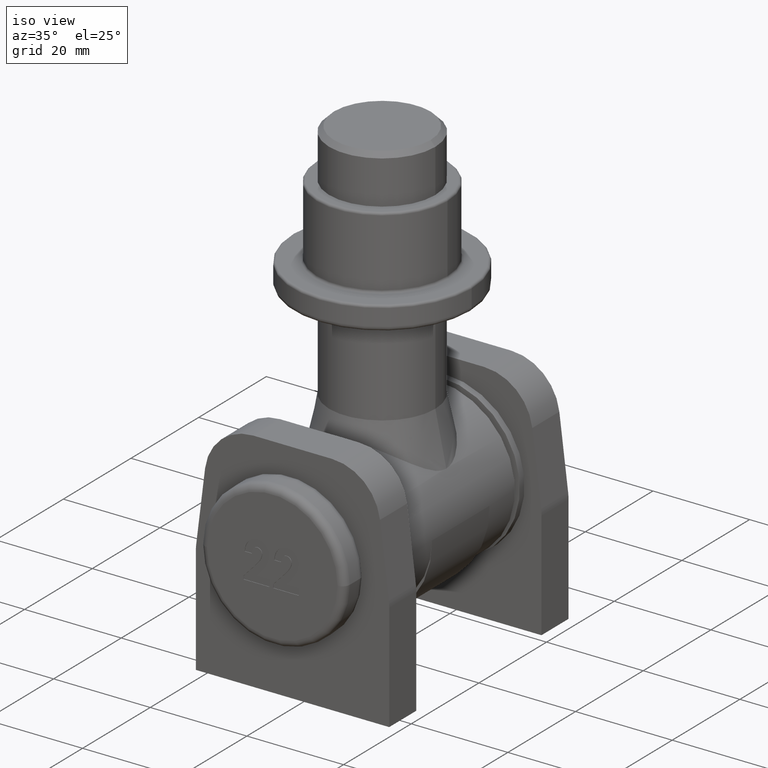
[diagram: clean part render]
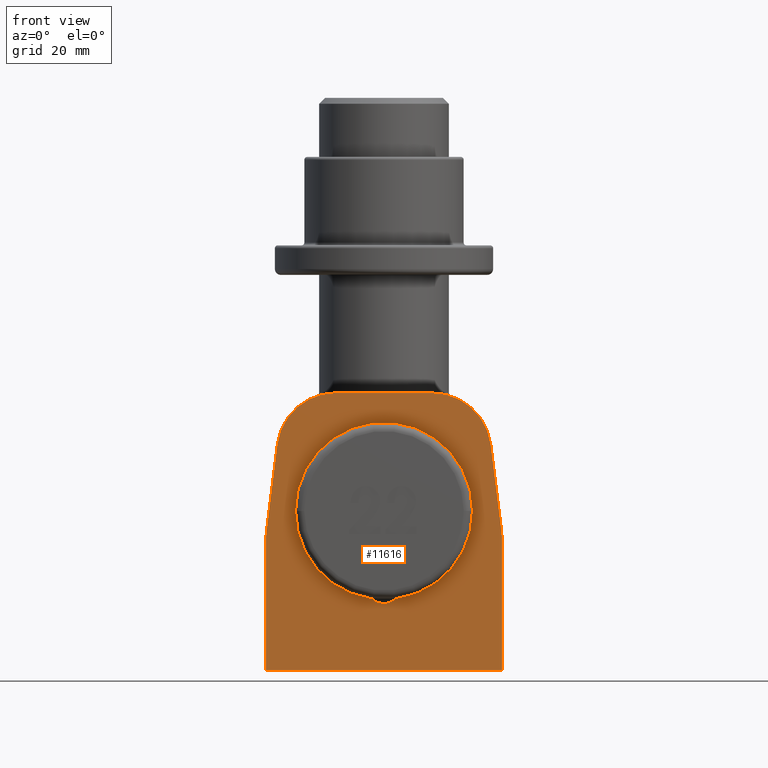
[diagram: tour spotlight — one face highlighted and labeled with its STEP entity id]
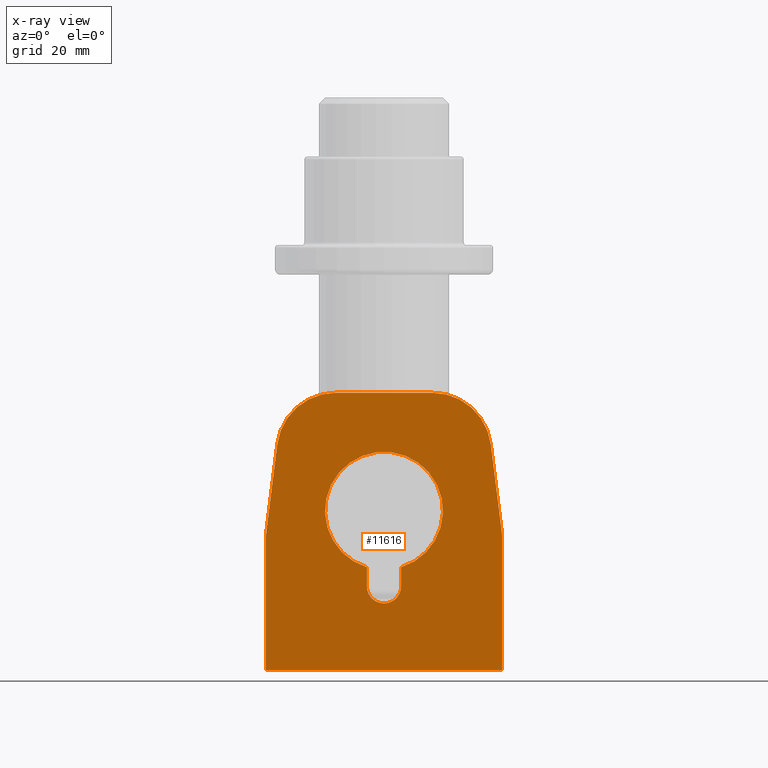
[diagram: x-ray of the same camera — body ghosted, this tour face saturated]
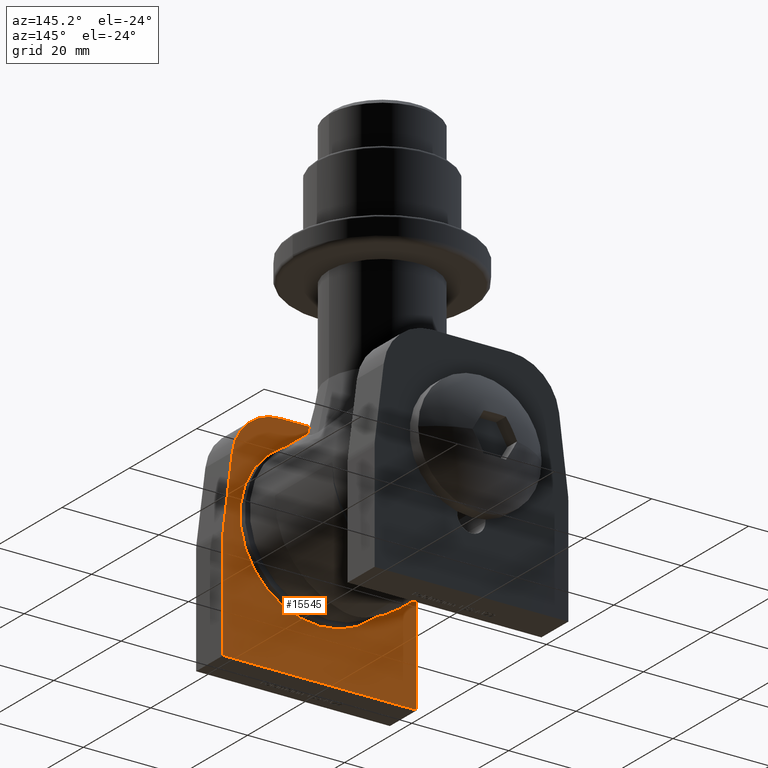
[diagram: tour spotlight — one face highlighted and labeled with its STEP entity id]
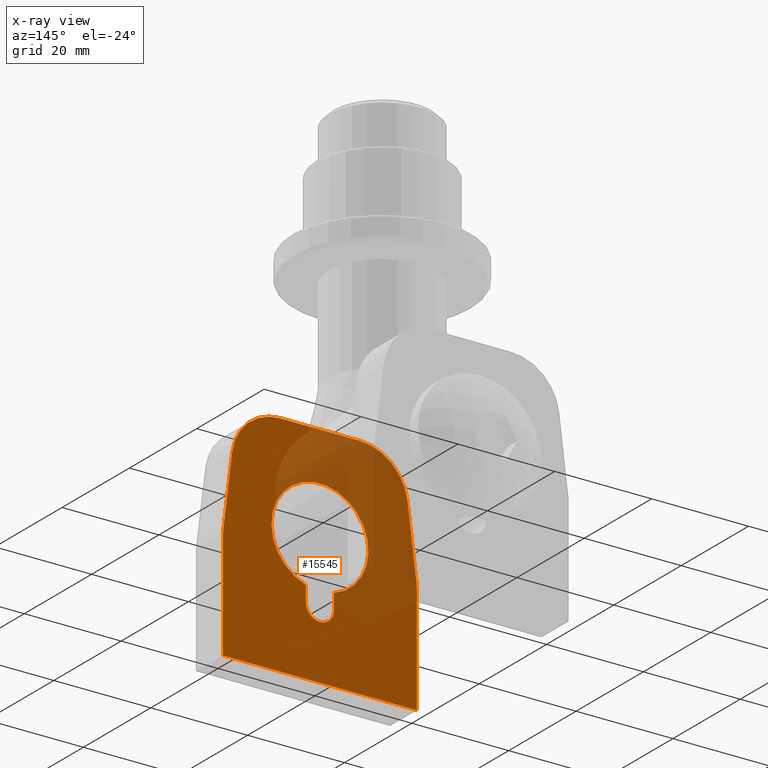
[diagram: x-ray of the same camera — body ghosted, this tour face saturated]
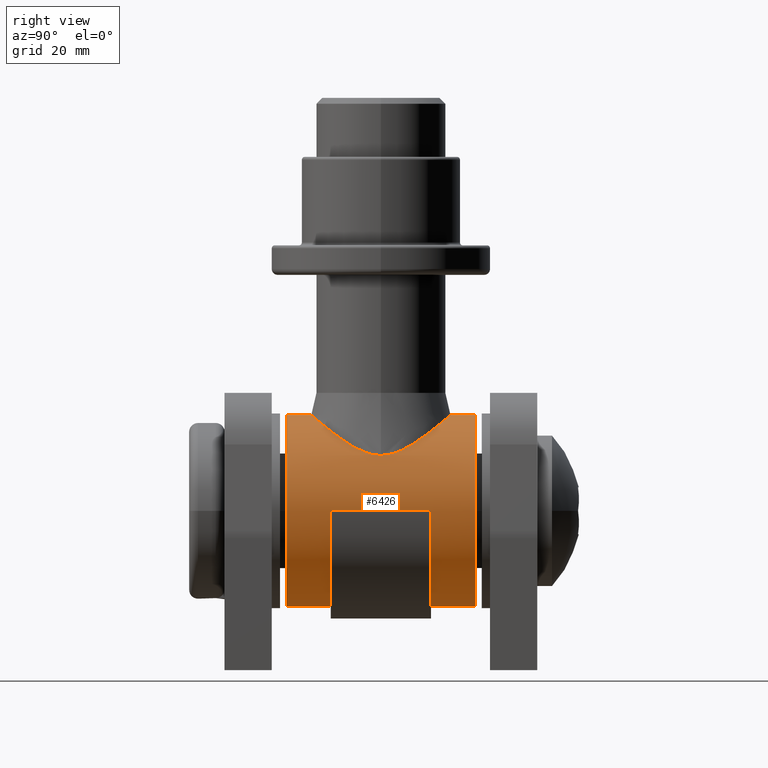
[diagram: tour spotlight — one face highlighted and labeled with its STEP entity id]
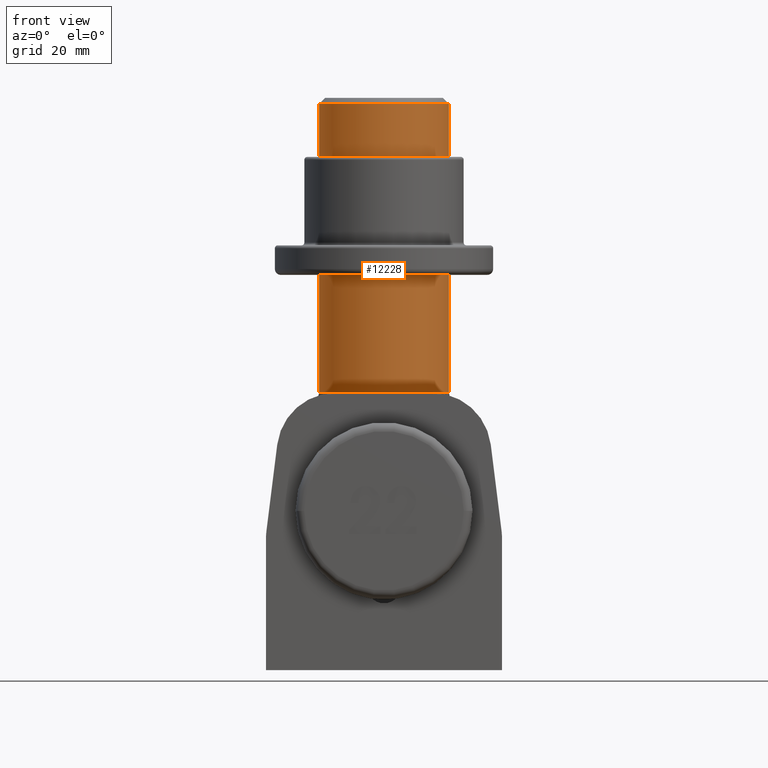
[diagram: tour spotlight — one face highlighted and labeled with its STEP entity id]
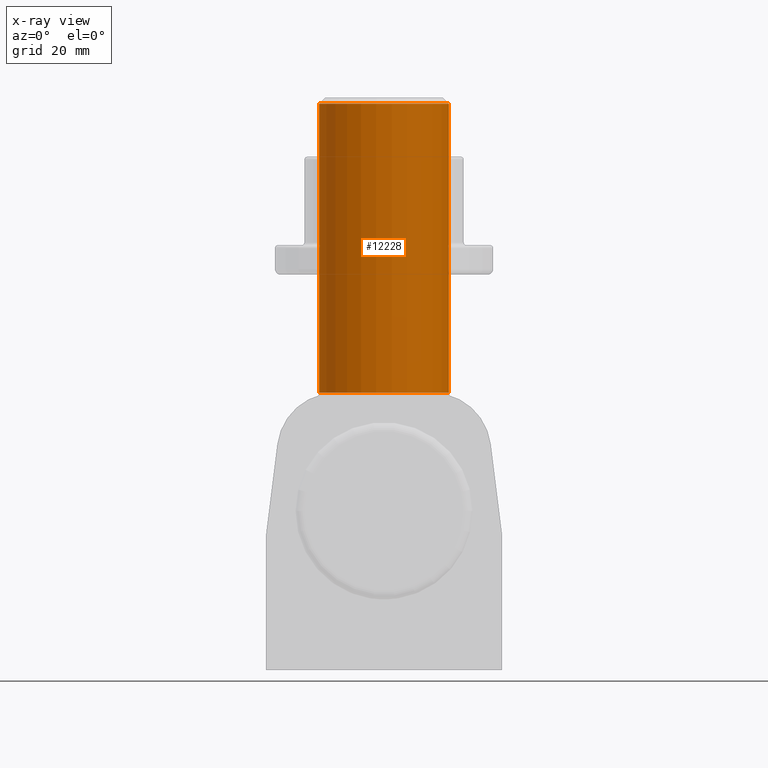
[diagram: x-ray of the same camera — body ghosted, this tour face saturated]
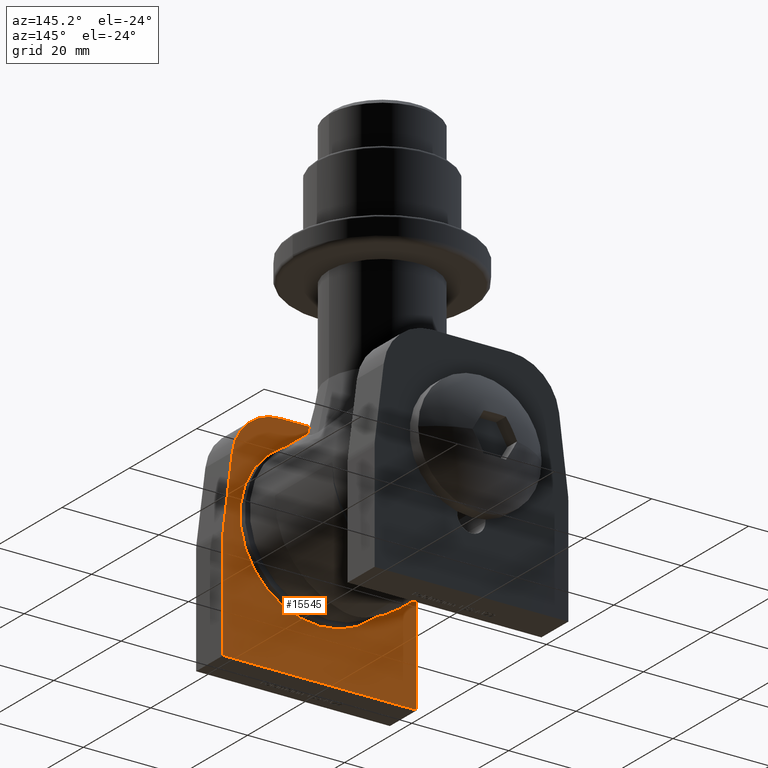
[diagram: tour spotlight — one face highlighted and labeled with its STEP entity id]
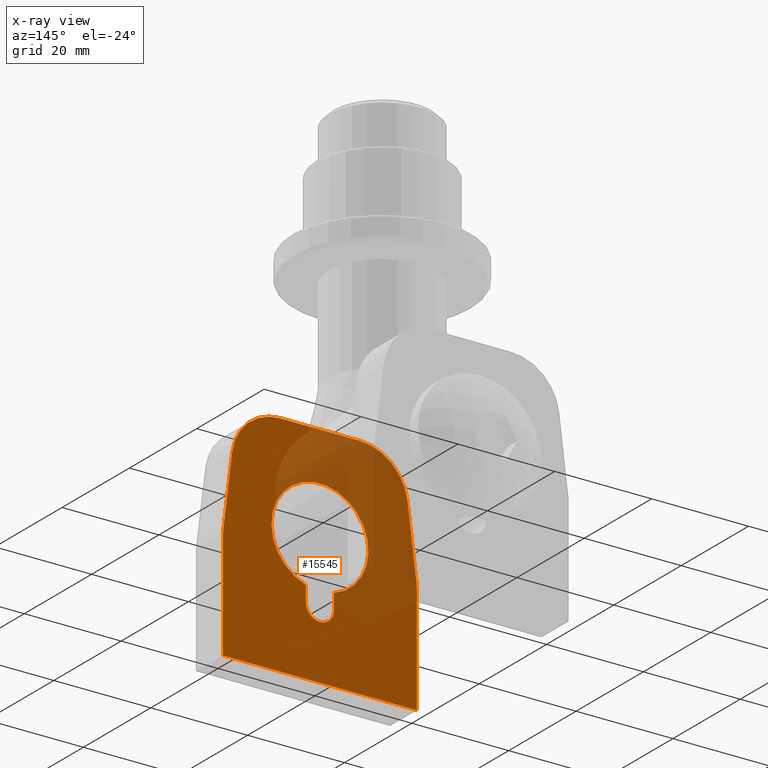
[diagram: x-ray of the same camera — body ghosted, this tour face saturated]
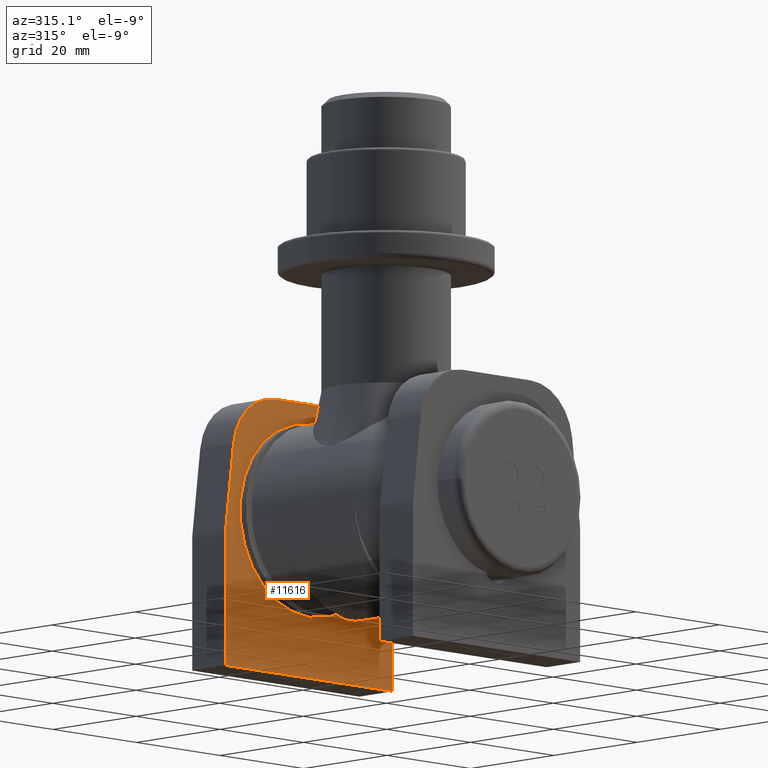
[diagram: tour spotlight — one face highlighted and labeled with its STEP entity id]
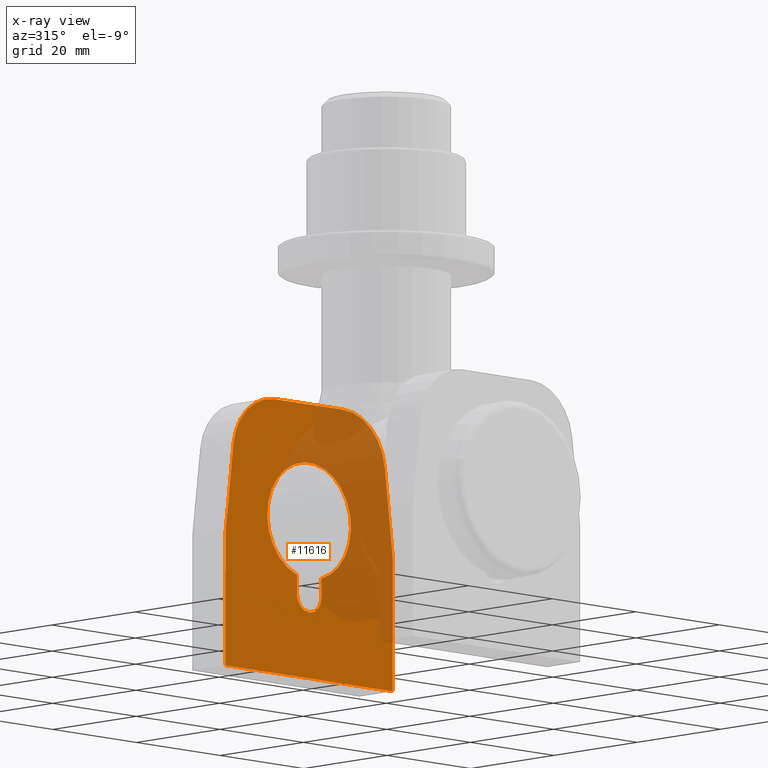
[diagram: x-ray of the same camera — body ghosted, this tour face saturated]
A machine part: a face-by-face anatomy tour. The part has 552 B-rep faces; the first image is the clean iso view, then the 6 largest visible faces are spotlighted one at a time (largest first), each with its STEP entity span.

Face 1 — front view, entity #11616. An x-ray twin of the same camera follows (body ghosted, this face saturated) — the face is partly hidden behind the body. In plain terms, the highlighted planar face has unit normal (0, -1, 0).
Definition (entity closure, byte-faithful):
#221 = VERTEX_POINT ( 'NONE', #14909 ) ;
#402 = EDGE_CURVE ( 'NONE', #5090, #6464, #7000, .T. ) ;
#623 = VERTEX_POINT ( 'NONE', #15334 ) ;
#719 = CARTESIAN_POINT ( 'NONE',  ( 17.00000000000000000, -4.000000000000000000, 23.50000000000000400 ) ) ;
#880 = DIRECTION ( 'NONE',  ( 0.0000000000000000000, 0.0000000000000000000, -1.000000000000000000 ) ) ;
#883 = VERTEX_POINT ( 'NONE', #6394 ) ;
#889 = DIRECTION ( 'NONE',  ( 0.0000000000000000000, 0.0000000000000000000, -1.000000000000000000 ) ) ;
#1038 = DIRECTION ( 'NONE',  ( 0.0000000000000000000, 0.0000000000000000000, -1.000000000000000000 ) ) ;
#1247 = DIRECTION ( 'NONE',  ( 0.0000000000000000000, 0.0000000000000000000, -1.000000000000000000 ) ) ;
#1395 = FACE_BOUND ( 'NONE', #1807, .T. ) ;
#1406 = CIRCLE ( 'NONE', #14851, 10.00000000000000000 ) ;
#1466 = ORIENTED_EDGE ( 'NONE', *, *, #8343, .T. ) ;
#1707 = CIRCLE ( 'NONE', #6314, 10.00000000000000000 ) ;
#1715 = AXIS2_PLACEMENT_3D ( 'NONE', #3473, #13056, #880 ) ;
#1733 = VECTOR ( 'NONE', #9433, 1000.000000000000200 ) ;
#1807 = EDGE_LOOP ( 'NONE', ( #14402, #11798, #6026, #5841, #1466 ) ) ;
#1822 = VECTOR ( 'NONE', #2552, 1000.000000000000000 ) ;
#1892 = DIRECTION ( 'NONE',  ( 0.0000000000000000000, 0.0000000000000000000, -1.000000000000000000 ) ) ;
#1992 = DIRECTION ( 'NONE',  ( 0.1240347345892083800, -0.0000000000000000000, -0.9922778767136676300 ) ) ;
#2140 = LINE ( 'NONE', #8158, #1733 ) ;
#2276 = CARTESIAN_POINT ( 'NONE',  ( -8.172177814626813600, -4.000000000000000000, 23.50000000000000400 ) ) ;
#2552 = DIRECTION ( 'NONE',  ( -1.342775999361927100E-016, -0.0000000000000000000, 1.000000000000000000 ) ) ;
#2635 = DIRECTION ( 'NONE',  ( -1.000000000000000000, -0.0000000000000000000, -0.0000000000000000000 ) ) ;
#2669 = VERTEX_POINT ( 'NONE', #15688 ) ;
#3087 = CARTESIAN_POINT ( 'NONE',  ( 19.92277876713667700, -4.000000000000000000, 0.1177698629065827700 ) ) ;
#3162 = CARTESIAN_POINT ( 'NONE',  ( 2.899999999999999900, -4.000000000000000000, -9.300000000000000700 ) ) ;
#3295 = ORIENTED_EDGE ( 'NONE', *, *, #7662, .T. ) ;
#3459 = EDGE_CURVE ( 'NONE', #4890, #9794, #4199, .T. ) ;
#3473 = CARTESIAN_POINT ( 'NONE',  ( -8.172177814626813600, -4.000000000000000000, 13.50000000000000400 ) ) ;
#3929 = EDGE_CURVE ( 'NONE', #5090, #221, #12735, .T. ) ;
#4199 = CIRCLE ( 'NONE', #11379, 2.899999999999999900 ) ;
#4379 = DIRECTION ( 'NONE',  ( 1.000000000000000000, -0.0000000000000000000, -0.0000000000000000000 ) ) ;
#4400 = DIRECTION ( 'NONE',  ( -1.342775999361927100E-016, -0.0000000000000000000, -1.000000000000000000 ) ) ;
#4428 = CARTESIAN_POINT ( 'NONE',  ( -2.899999999999999900, -4.000000000000000000, -9.300000000000000700 ) ) ;
#4485 = VECTOR ( 'NONE', #5826, 1000.000000000000000 ) ;
#4508 = CIRCLE ( 'NONE', #7967, 10.00000000000000000 ) ;
#4890 = VERTEX_POINT ( 'NONE', #6878 ) ;
#4963 = EDGE_CURVE ( 'NONE', #7890, #883, #8369, .T. ) ;
#5090 = VERTEX_POINT ( 'NONE', #2276 ) ;
#5112 = CARTESIAN_POINT ( 'NONE',  ( 0.0000000000000000000, -4.000000000000000000, -9.300000000000000700 ) ) ;
#5308 = DIRECTION ( 'NONE',  ( -0.0000000000000000000, -0.0000000000000000000, 1.000000000000000000 ) ) ;
#5365 = CARTESIAN_POINT ( 'NONE',  ( 18.09495658176349100, -4.000000000000000000, 14.74034734589208600 ) ) ;
#5683 = EDGE_CURVE ( 'NONE', #883, #9407, #9493, .T. ) ;
#5826 = DIRECTION ( 'NONE',  ( -0.0000000000000000000, -0.0000000000000000000, -1.000000000000000000 ) ) ;
#5841 = ORIENTED_EDGE ( 'NONE', *, *, #3459, .T. ) ;
#5853 = LINE ( 'NONE', #11670, #15114 ) ;
#6026 = ORIENTED_EDGE ( 'NONE', *, *, #6318, .T. ) ;
#6042 = DIRECTION ( 'NONE',  ( 0.0000000000000000000, 0.0000000000000000000, -1.000000000000000000 ) ) ;
#6314 = AXIS2_PLACEMENT_3D ( 'NONE', #8175, #9242, #1892 ) ;
#6318 = EDGE_CURVE ( 'NONE', #9407, #4890, #8298, .T. ) ;
#6394 = CARTESIAN_POINT ( 'NONE',  ( -2.900000000000000400, -4.000000000000000000, -6.070266453970862000 ) ) ;
#6411 = EDGE_CURVE ( 'NONE', #2669, #13812, #10600, .T. ) ;
#6464 = VERTEX_POINT ( 'NONE', #10856 ) ;
#6533 = CIRCLE ( 'NONE', #11003, 2.899999999999999900 ) ;
#6878 = CARTESIAN_POINT ( 'NONE',  ( 2.899999999999999900, -4.000000000000000000, -9.300000000000000700 ) ) ;
#7000 = LINE ( 'NONE', #719, #11171 ) ;
#7053 = EDGE_CURVE ( 'NONE', #13812, #623, #14720, .T. ) ;
#7142 = DIRECTION ( 'NONE',  ( 0.0000000000000000000, 1.000000000000000000, -0.0000000000000000000 ) ) ;
#7169 = EDGE_CURVE ( 'NONE', #12570, #221, #2140, .T. ) ;
#7267 = PLANE ( 'NONE',  #8864 ) ;
#7568 = VECTOR ( 'NONE', #5308, 1000.000000000000000 ) ;
#7662 = EDGE_CURVE ( 'NONE', #14994, #6464, #1707, .T. ) ;
#7890 = VERTEX_POINT ( 'NONE', #4428 ) ;
#7963 = CARTESIAN_POINT ( 'NONE',  ( 2.900000000000000400, -4.000000000000000000, -6.070266453970862000 ) ) ;
#7967 = AXIS2_PLACEMENT_3D ( 'NONE', #12006, #8463, #889 ) ;
#8158 = CARTESIAN_POINT ( 'NONE',  ( -17.00000000000000000, -4.000000000000000000, 23.50000000000000400 ) ) ;
#8175 = CARTESIAN_POINT ( 'NONE',  ( 8.172177814626813600, -4.000000000000000000, 13.50000000000000200 ) ) ;
#8298 = LINE ( 'NONE', #3162, #13787 ) ;
#8343 = EDGE_CURVE ( 'NONE', #9794, #7890, #6533, .T. ) ;
#8369 = LINE ( 'NONE', #14903, #1822 ) ;
#8382 = CARTESIAN_POINT ( 'NONE',  ( -19.92277876713667700, -4.000000000000000000, 0.1177698629065866700 ) ) ;
#8463 = DIRECTION ( 'NONE',  ( 0.0000000000000000000, -1.000000000000000000, 0.0000000000000000000 ) ) ;
#8676 = ORIENTED_EDGE ( 'NONE', *, *, #7169, .F. ) ;
#8864 = AXIS2_PLACEMENT_3D ( 'NONE', #11866, #13081, #9549 ) ;
#9090 = ORIENTED_EDGE ( 'NONE', *, *, #12880, .F. ) ;
#9197 = EDGE_LOOP ( 'NONE', ( #8676, #11176, #9090, #10519, #12355, #13677, #14399, #3295, #10714, #9591 ) ) ;
#9242 = DIRECTION ( 'NONE',  ( 0.0000000000000000000, -1.000000000000000000, 0.0000000000000000000 ) ) ;
#9407 = VERTEX_POINT ( 'NONE', #7963 ) ;
#9433 = DIRECTION ( 'NONE',  ( 0.1240347345892083800, -0.0000000000000000000, 0.9922778767136676300 ) ) ;
#9493 = CIRCLE ( 'NONE', #11493, 9.999999999999998200 ) ;
#9549 = DIRECTION ( 'NONE',  ( 0.0000000000000000000, -0.0000000000000000000, -1.000000000000000000 ) ) ;
#9591 = ORIENTED_EDGE ( 'NONE', *, *, #3929, .T. ) ;
#9794 = VERTEX_POINT ( 'NONE', #15757 ) ;
#9809 = DIRECTION ( 'NONE',  ( 0.0000000000000000000, 1.000000000000000000, -0.0000000000000000000 ) ) ;
#9980 = CARTESIAN_POINT ( 'NONE',  ( -20.00000000000000000, -4.000000000000000000, -23.50000000000000400 ) ) ;
#10519 = ORIENTED_EDGE ( 'NONE', *, *, #7053, .F. ) ;
#10600 = LINE ( 'NONE', #15574, #4485 ) ;
#10714 = ORIENTED_EDGE ( 'NONE', *, *, #402, .F. ) ;
#10856 = CARTESIAN_POINT ( 'NONE',  ( 8.172177814626813600, -4.000000000000000000, 23.50000000000000400 ) ) ;
#10929 = VERTEX_POINT ( 'NONE', #11026 ) ;
#11003 = AXIS2_PLACEMENT_3D ( 'NONE', #5112, #7142, #1038 ) ;
#11024 = DIRECTION ( 'NONE',  ( 0.0000000000000000000, 0.0000000000000000000, 1.000000000000000000 ) ) ;
#11026 = CARTESIAN_POINT ( 'NONE',  ( -20.00000000000000000, -4.000000000000000000, -1.122577482985502000 ) ) ;
#11171 = VECTOR ( 'NONE', #4379, 1000.000000000000000 ) ;
#11176 = ORIENTED_EDGE ( 'NONE', *, *, #12154, .T. ) ;
#11320 = CARTESIAN_POINT ( 'NONE',  ( -20.00000000000000000, -4.000000000000000000, -0.5000000000000038900 ) ) ;
#11379 = AXIS2_PLACEMENT_3D ( 'NONE', #13327, #9809, #6042 ) ;
#11493 = AXIS2_PLACEMENT_3D ( 'NONE', #14707, #14543, #11024 ) ;
#11616 = ADVANCED_FACE ( 'NONE', ( #13428, #1395 ), #7267, .T. ) ;
#11670 = CARTESIAN_POINT ( 'NONE',  ( 20.00000000000000000, -4.000000000000000000, -0.5000000000000038900 ) ) ;
#11798 = ORIENTED_EDGE ( 'NONE', *, *, #5683, .T. ) ;
#11866 = CARTESIAN_POINT ( 'NONE',  ( 0.0000000000000000000, -4.000000000000000000, 0.0000000000000000000 ) ) ;
#12006 = CARTESIAN_POINT ( 'NONE',  ( 10.00000000000000000, -4.000000000000000000, -1.122577482985502000 ) ) ;
#12154 = EDGE_CURVE ( 'NONE', #12570, #10929, #1406, .T. ) ;
#12243 = DIRECTION ( 'NONE',  ( 0.0000000000000000000, -1.000000000000000000, 0.0000000000000000000 ) ) ;
#12341 = VERTEX_POINT ( 'NONE', #3087 ) ;
#12355 = ORIENTED_EDGE ( 'NONE', *, *, #6411, .F. ) ;
#12570 = VERTEX_POINT ( 'NONE', #8382 ) ;
#12619 = VECTOR ( 'NONE', #2635, 1000.000000000000000 ) ;
#12735 = CIRCLE ( 'NONE', #1715, 10.00000000000000000 ) ;
#12880 = EDGE_CURVE ( 'NONE', #623, #10929, #13605, .T. ) ;
#13036 = EDGE_CURVE ( 'NONE', #2669, #12341, #4508, .T. ) ;
#13056 = DIRECTION ( 'NONE',  ( 0.0000000000000000000, -1.000000000000000000, 0.0000000000000000000 ) ) ;
#13081 = DIRECTION ( 'NONE',  ( 0.0000000000000000000, -1.000000000000000000, 0.0000000000000000000 ) ) ;
#13327 = CARTESIAN_POINT ( 'NONE',  ( 0.0000000000000000000, -4.000000000000000000, -9.300000000000000700 ) ) ;
#13428 = FACE_OUTER_BOUND ( 'NONE', #9197, .T. ) ;
#13605 = LINE ( 'NONE', #11320, #7568 ) ;
#13677 = ORIENTED_EDGE ( 'NONE', *, *, #13036, .T. ) ;
#13787 = VECTOR ( 'NONE', #4400, 1000.000000000000000 ) ;
#13812 = VERTEX_POINT ( 'NONE', #13931 ) ;
#13831 = EDGE_CURVE ( 'NONE', #14994, #12341, #5853, .T. ) ;
#13931 = CARTESIAN_POINT ( 'NONE',  ( 20.00000000000000000, -4.000000000000000000, -23.50000000000000400 ) ) ;
#14399 = ORIENTED_EDGE ( 'NONE', *, *, #13831, .F. ) ;
#14402 = ORIENTED_EDGE ( 'NONE', *, *, #4963, .T. ) ;
#14543 = DIRECTION ( 'NONE',  ( 0.0000000000000000000, 1.000000000000000000, 0.0000000000000000000 ) ) ;
#14696 = CARTESIAN_POINT ( 'NONE',  ( -10.00000000000000000, -4.000000000000000000, -1.122577482985502000 ) ) ;
#14707 = CARTESIAN_POINT ( 'NONE',  ( 1.925929944387235900E-031, -4.000000000000000000, 3.499999999999998200 ) ) ;
#14720 = LINE ( 'NONE', #9980, #12619 ) ;
#14851 = AXIS2_PLACEMENT_3D ( 'NONE', #14696, #12243, #1247 ) ;
#14903 = CARTESIAN_POINT ( 'NONE',  ( -2.900000000000000400, -4.000000000000000000, -6.070266453970862000 ) ) ;
#14909 = CARTESIAN_POINT ( 'NONE',  ( -18.09495658176349100, -4.000000000000000000, 14.74034734589208800 ) ) ;
#14994 = VERTEX_POINT ( 'NONE', #5365 ) ;
#15114 = VECTOR ( 'NONE', #1992, 1000.000000000000200 ) ;
#15334 = CARTESIAN_POINT ( 'NONE',  ( -20.00000000000000000, -4.000000000000000000, -23.50000000000000400 ) ) ;
#15574 = CARTESIAN_POINT ( 'NONE',  ( 20.00000000000000000, -4.000000000000000000, -23.50000000000000400 ) ) ;
#15688 = CARTESIAN_POINT ( 'NONE',  ( 20.00000000000000000, -4.000000000000000000, -1.122577482985502000 ) ) ;
#15757 = CARTESIAN_POINT ( 'NONE',  ( 0.0000000000000000000, -4.000000000000000000, -12.20000000000000100 ) ) ;

Face 2 — auxiliary view, entity #15545. An x-ray twin of the same camera follows (body ghosted, this face saturated) — the face is partly hidden behind the body. In plain terms, the highlighted planar face has unit normal (0, -1, 0).
Definition (entity closure, byte-faithful):
#12 = AXIS2_PLACEMENT_3D ( 'NONE', #2729, #5171, #7776 ) ;
#106 = VERTEX_POINT ( 'NONE', #11048 ) ;
#400 = DIRECTION ( 'NONE',  ( 1.000000000000000000, -0.0000000000000000000, -0.0000000000000000000 ) ) ;
#588 = CARTESIAN_POINT ( 'NONE',  ( -10.00000000000000000, 4.000000000000000000, -1.122577482985502000 ) ) ;
#656 = DIRECTION ( 'NONE',  ( 0.1240347345892083800, -0.0000000000000000000, -0.9922778767136676300 ) ) ;
#741 = EDGE_CURVE ( 'NONE', #6906, #14143, #800, .T. ) ;
#800 = CIRCLE ( 'NONE', #10448, 2.899999999999999900 ) ;
#1003 = DIRECTION ( 'NONE',  ( -7.979727989493312600E-015, 0.0000000000000000000, -1.000000000000000000 ) ) ;
#1134 = AXIS2_PLACEMENT_3D ( 'NONE', #2771, #8808, #1512 ) ;
#1426 = CARTESIAN_POINT ( 'NONE',  ( 8.172177814626813600, 4.000000000000000000, 23.50000000000000400 ) ) ;
#1512 = DIRECTION ( 'NONE',  ( 0.0000000000000000000, 0.0000000000000000000, 1.000000000000000000 ) ) ;
#1554 = VERTEX_POINT ( 'NONE', #8562 ) ;
#1586 = AXIS2_PLACEMENT_3D ( 'NONE', #11182, #2775, #6460 ) ;
#1617 = DIRECTION ( 'NONE',  ( 0.0000000000000000000, 0.0000000000000000000, -1.000000000000000000 ) ) ;
#1663 = DIRECTION ( 'NONE',  ( 0.0000000000000000000, 0.0000000000000000000, -1.000000000000000000 ) ) ;
#1806 = DIRECTION ( 'NONE',  ( 0.0000000000000000000, -1.000000000000000000, 0.0000000000000000000 ) ) ;
#2119 = CARTESIAN_POINT ( 'NONE',  ( 2.900000000000000400, 4.000000000000000000, -6.070266453970862000 ) ) ;
#2139 = CARTESIAN_POINT ( 'NONE',  ( 10.00000000000000000, 4.000000000000000000, -1.122577482985502000 ) ) ;
#2213 = ORIENTED_EDGE ( 'NONE', *, *, #13918, .T. ) ;
#2320 = CARTESIAN_POINT ( 'NONE',  ( -2.900000000000000400, 4.000000000000000000, -6.070266453970862000 ) ) ;
#2639 = LINE ( 'NONE', #2815, #3025 ) ;
#2729 = CARTESIAN_POINT ( 'NONE',  ( -8.172177814626813600, 4.000000000000000000, 13.50000000000000400 ) ) ;
#2771 = CARTESIAN_POINT ( 'NONE',  ( 1.925929944387235900E-031, 4.000000000000000000, 3.499999999999998200 ) ) ;
#2775 = DIRECTION ( 'NONE',  ( 0.0000000000000000000, 1.000000000000000000, -0.0000000000000000000 ) ) ;
#2815 = CARTESIAN_POINT ( 'NONE',  ( 20.00000000000000000, 4.000000000000000000, -23.50000000000000400 ) ) ;
#2821 = VERTEX_POINT ( 'NONE', #9930 ) ;
#2879 = ORIENTED_EDGE ( 'NONE', *, *, #8486, .F. ) ;
#3025 = VECTOR ( 'NONE', #4006, 1000.000000000000000 ) ;
#3093 = ORIENTED_EDGE ( 'NONE', *, *, #10498, .T. ) ;
#3598 = VERTEX_POINT ( 'NONE', #9705 ) ;
#4006 = DIRECTION ( 'NONE',  ( -0.0000000000000000000, -0.0000000000000000000, -1.000000000000000000 ) ) ;
#4013 = VERTEX_POINT ( 'NONE', #5152 ) ;
#4091 = ORIENTED_EDGE ( 'NONE', *, *, #11730, .T. ) ;
#4651 = CARTESIAN_POINT ( 'NONE',  ( -20.00000000000000000, 4.000000000000000000, -23.50000000000000400 ) ) ;
#4653 = VECTOR ( 'NONE', #400, 1000.000000000000000 ) ;
#4735 = VECTOR ( 'NONE', #11559, 1000.000000000000000 ) ;
#4801 = EDGE_CURVE ( 'NONE', #15106, #15306, #7802, .T. ) ;
#5152 = CARTESIAN_POINT ( 'NONE',  ( -8.172177814626813600, 4.000000000000000000, 23.50000000000000400 ) ) ;
#5171 = DIRECTION ( 'NONE',  ( -0.0000000000000000000, 1.000000000000000000, -0.0000000000000000000 ) ) ;
#5268 = ORIENTED_EDGE ( 'NONE', *, *, #6084, .T. ) ;
#5601 = CARTESIAN_POINT ( 'NONE',  ( -2.900000000000000400, 4.000000000000000000, -6.070266453970862000 ) ) ;
#5722 = CARTESIAN_POINT ( 'NONE',  ( 0.0000000000000000000, 4.000000000000000000, 0.0000000000000000000 ) ) ;
#5840 = CARTESIAN_POINT ( 'NONE',  ( 2.899999999999999900, 4.000000000000000000, -9.300000000000000700 ) ) ;
#5868 = VERTEX_POINT ( 'NONE', #2119 ) ;
#6006 = ORIENTED_EDGE ( 'NONE', *, *, #9447, .T. ) ;
#6059 = EDGE_CURVE ( 'NONE', #106, #13065, #12226, .T. ) ;
#6084 = EDGE_CURVE ( 'NONE', #8889, #3598, #7916, .T. ) ;
#6098 = VECTOR ( 'NONE', #15039, 1000.000000000000000 ) ;
#6460 = DIRECTION ( 'NONE',  ( 0.0000000000000000000, 0.0000000000000000000, -1.000000000000000000 ) ) ;
#6710 = CARTESIAN_POINT ( 'NONE',  ( 20.00000000000000000, 4.000000000000000000, -0.5000000000000038900 ) ) ;
#6906 = VERTEX_POINT ( 'NONE', #10382 ) ;
#7003 = DIRECTION ( 'NONE',  ( 0.0000000000000000000, -0.0000000000000000000, -1.000000000000000000 ) ) ;
#7167 = CARTESIAN_POINT ( 'NONE',  ( -17.00000000000000000, 4.000000000000000000, 23.50000000000000400 ) ) ;
#7347 = EDGE_CURVE ( 'NONE', #5868, #6906, #14334, .T. ) ;
#7390 = ORIENTED_EDGE ( 'NONE', *, *, #6059, .T. ) ;
#7659 = ORIENTED_EDGE ( 'NONE', *, *, #8057, .T. ) ;
#7776 = DIRECTION ( 'NONE',  ( 0.0000000000000000000, 0.0000000000000000000, -1.000000000000000000 ) ) ;
#7802 = LINE ( 'NONE', #5601, #4735 ) ;
#7813 = ORIENTED_EDGE ( 'NONE', *, *, #9300, .T. ) ;
#7916 = CIRCLE ( 'NONE', #14809, 10.00000000000000000 ) ;
#8007 = CARTESIAN_POINT ( 'NONE',  ( 8.172177814626813600, 4.000000000000000000, 13.50000000000000200 ) ) ;
#8057 = EDGE_CURVE ( 'NONE', #8621, #4013, #15445, .T. ) ;
#8182 = AXIS2_PLACEMENT_3D ( 'NONE', #5722, #1806, #7003 ) ;
#8218 = DIRECTION ( 'NONE',  ( 0.1240347345892083800, -0.0000000000000000000, 0.9922778767136676300 ) ) ;
#8317 = CARTESIAN_POINT ( 'NONE',  ( 19.92277876713667700, 4.000000000000000000, 0.1177698629065827700 ) ) ;
#8320 = DIRECTION ( 'NONE',  ( -1.342775999361927100E-016, -0.0000000000000000000, -1.000000000000000000 ) ) ;
#8486 = EDGE_CURVE ( 'NONE', #15306, #5868, #9576, .T. ) ;
#8522 = AXIS2_PLACEMENT_3D ( 'NONE', #588, #9010, #1663 ) ;
#8562 = CARTESIAN_POINT ( 'NONE',  ( 20.00000000000000000, 4.000000000000000000, -1.122577482985502000 ) ) ;
#8621 = VERTEX_POINT ( 'NONE', #11684 ) ;
#8636 = FACE_BOUND ( 'NONE', #9732, .T. ) ;
#8808 = DIRECTION ( 'NONE',  ( 0.0000000000000000000, 1.000000000000000000, 0.0000000000000000000 ) ) ;
#8889 = VERTEX_POINT ( 'NONE', #1426 ) ;
#8956 = ORIENTED_EDGE ( 'NONE', *, *, #12458, .T. ) ;
#8959 = DIRECTION ( 'NONE',  ( -0.0000000000000000000, 1.000000000000000000, -0.0000000000000000000 ) ) ;
#9010 = DIRECTION ( 'NONE',  ( -0.0000000000000000000, 1.000000000000000000, -0.0000000000000000000 ) ) ;
#9109 = LINE ( 'NONE', #11260, #6098 ) ;
#9300 = EDGE_CURVE ( 'NONE', #1554, #2821, #2639, .T. ) ;
#9401 = ORIENTED_EDGE ( 'NONE', *, *, #4801, .F. ) ;
#9441 = LINE ( 'NONE', #7167, #14927 ) ;
#9447 = EDGE_CURVE ( 'NONE', #3598, #10742, #12360, .T. ) ;
#9512 = DIRECTION ( 'NONE',  ( -1.000000000000000000, -0.0000000000000000000, -0.0000000000000000000 ) ) ;
#9528 = VERTEX_POINT ( 'NONE', #15158 ) ;
#9576 = CIRCLE ( 'NONE', #1134, 9.999999999999998200 ) ;
#9705 = CARTESIAN_POINT ( 'NONE',  ( 18.09495658176349100, 4.000000000000000000, 14.74034734589208600 ) ) ;
#9732 = EDGE_LOOP ( 'NONE', ( #2879, #9401, #11284, #13349, #10882 ) ) ;
#9930 = CARTESIAN_POINT ( 'NONE',  ( 20.00000000000000000, 4.000000000000000000, -23.50000000000000400 ) ) ;
#10051 = LINE ( 'NONE', #4651, #11389 ) ;
#10188 = FACE_OUTER_BOUND ( 'NONE', #13691, .T. ) ;
#10382 = CARTESIAN_POINT ( 'NONE',  ( 2.899999999999999900, 4.000000000000000000, -9.300000000000000700 ) ) ;
#10448 = AXIS2_PLACEMENT_3D ( 'NONE', #15662, #11054, #14575 ) ;
#10498 = EDGE_CURVE ( 'NONE', #9528, #106, #9109, .T. ) ;
#10742 = VERTEX_POINT ( 'NONE', #8317 ) ;
#10761 = DIRECTION ( 'NONE',  ( -0.0000000000000000000, 1.000000000000000000, -0.0000000000000000000 ) ) ;
#10882 = ORIENTED_EDGE ( 'NONE', *, *, #7347, .F. ) ;
#10972 = CIRCLE ( 'NONE', #1586, 2.899999999999999900 ) ;
#11048 = CARTESIAN_POINT ( 'NONE',  ( -20.00000000000000000, 4.000000000000000000, -1.122577482985502000 ) ) ;
#11054 = DIRECTION ( 'NONE',  ( 0.0000000000000000000, 1.000000000000000000, -0.0000000000000000000 ) ) ;
#11182 = CARTESIAN_POINT ( 'NONE',  ( 0.0000000000000000000, 4.000000000000000000, -9.300000000000000700 ) ) ;
#11260 = CARTESIAN_POINT ( 'NONE',  ( -20.00000000000000000, 4.000000000000000000, -0.5000000000000038900 ) ) ;
#11284 = ORIENTED_EDGE ( 'NONE', *, *, #14361, .F. ) ;
#11389 = VECTOR ( 'NONE', #9512, 1000.000000000000000 ) ;
#11559 = DIRECTION ( 'NONE',  ( -1.342775999361927100E-016, -0.0000000000000000000, 1.000000000000000000 ) ) ;
#11684 = CARTESIAN_POINT ( 'NONE',  ( -18.09495658176349100, 4.000000000000000000, 14.74034734589208800 ) ) ;
#11730 = EDGE_CURVE ( 'NONE', #4013, #8889, #14940, .T. ) ;
#11941 = AXIS2_PLACEMENT_3D ( 'NONE', #2139, #10761, #1003 ) ;
#12226 = CIRCLE ( 'NONE', #8522, 10.00000000000000000 ) ;
#12322 = CARTESIAN_POINT ( 'NONE',  ( 0.0000000000000000000, 4.000000000000000000, -12.20000000000000100 ) ) ;
#12360 = LINE ( 'NONE', #6710, #13489 ) ;
#12458 = EDGE_CURVE ( 'NONE', #2821, #9528, #10051, .T. ) ;
#13065 = VERTEX_POINT ( 'NONE', #13323 ) ;
#13323 = CARTESIAN_POINT ( 'NONE',  ( -19.92277876713667700, 4.000000000000000000, 0.1177698629065866700 ) ) ;
#13349 = ORIENTED_EDGE ( 'NONE', *, *, #741, .F. ) ;
#13368 = CIRCLE ( 'NONE', #11941, 10.00000000000000000 ) ;
#13489 = VECTOR ( 'NONE', #656, 1000.000000000000200 ) ;
#13646 = CARTESIAN_POINT ( 'NONE',  ( 17.00000000000000000, 4.000000000000000000, 23.50000000000000400 ) ) ;
#13691 = EDGE_LOOP ( 'NONE', ( #3093, #7390, #2213, #7659, #4091, #5268, #6006, #14440, #7813, #8956 ) ) ;
#13918 = EDGE_CURVE ( 'NONE', #13065, #8621, #9441, .T. ) ;
#14130 = PLANE ( 'NONE',  #8182 ) ;
#14143 = VERTEX_POINT ( 'NONE', #12322 ) ;
#14295 = CARTESIAN_POINT ( 'NONE',  ( -2.899999999999999900, 4.000000000000000000, -9.300000000000000700 ) ) ;
#14334 = LINE ( 'NONE', #5840, #14901 ) ;
#14361 = EDGE_CURVE ( 'NONE', #14143, #15106, #10972, .T. ) ;
#14440 = ORIENTED_EDGE ( 'NONE', *, *, #15683, .T. ) ;
#14575 = DIRECTION ( 'NONE',  ( 0.0000000000000000000, 0.0000000000000000000, -1.000000000000000000 ) ) ;
#14809 = AXIS2_PLACEMENT_3D ( 'NONE', #8007, #8959, #1617 ) ;
#14901 = VECTOR ( 'NONE', #8320, 1000.000000000000000 ) ;
#14927 = VECTOR ( 'NONE', #8218, 1000.000000000000200 ) ;
#14940 = LINE ( 'NONE', #13646, #4653 ) ;
#15039 = DIRECTION ( 'NONE',  ( -0.0000000000000000000, -0.0000000000000000000, 1.000000000000000000 ) ) ;
#15106 = VERTEX_POINT ( 'NONE', #14295 ) ;
#15158 = CARTESIAN_POINT ( 'NONE',  ( -20.00000000000000000, 4.000000000000000000, -23.50000000000000400 ) ) ;
#15306 = VERTEX_POINT ( 'NONE', #2320 ) ;
#15445 = CIRCLE ( 'NONE', #12, 10.00000000000000000 ) ;
#15545 = ADVANCED_FACE ( 'NONE', ( #10188, #8636 ), #14130, .F. ) ;
#15662 = CARTESIAN_POINT ( 'NONE',  ( 0.0000000000000000000, 4.000000000000000000, -9.300000000000000700 ) ) ;
#15683 = EDGE_CURVE ( 'NONE', #10742, #1554, #13368, .T. ) ;

Face 3 — right view, entity #6426. In plain terms, the highlighted cylindrical surface (partial cylindrical patch) has radius 16.25 mm, axis along (-0, -1, -0).
Definition (entity closure, byte-faithful):
#59 = LINE ( 'NONE', #6695, #1206 ) ;
#140 = CARTESIAN_POINT ( 'NONE',  ( 1.990051048614449300E-015, 16.00000000000000000, 16.25000000000000000 ) ) ;
#478 = CARTESIAN_POINT ( 'NONE',  ( 11.63588168650432100, -5.440371094797988000, 11.34712501061383000 ) ) ;
#736 = ORIENTED_EDGE ( 'NONE', *, *, #7330, .F. ) ;
#788 = VECTOR ( 'NONE', #12798, 1000.000000000000000 ) ;
#806 = CARTESIAN_POINT ( 'NONE',  ( 0.8714124998772774200, 11.77677842652188500, 16.23255529034799200 ) ) ;
#809 = VERTEX_POINT ( 'NONE', #7400 ) ;
#936 = DIRECTION ( 'NONE',  ( 0.0000000000000000000, 0.0000000000000000000, -1.000000000000000000 ) ) ;
#1206 = VECTOR ( 'NONE', #15143, 1000.000000000000000 ) ;
#1293 = VECTOR ( 'NONE', #11086, 1000.000000000000000 ) ;
#1378 = CARTESIAN_POINT ( 'NONE',  ( 16.25000000000000000, -8.500000000000000000, 3.209238430557093100E-014 ) ) ;
#1401 = CARTESIAN_POINT ( 'NONE',  ( 0.0000000000000000000, -16.00000000000000000, 0.0000000000000000000 ) ) ;
#1495 = AXIS2_PLACEMENT_3D ( 'NONE', #1401, #13774, #9994 ) ;
#1496 = CARTESIAN_POINT ( 'NONE',  ( 6.560531685246952600, -10.18294655774475100, 14.88652361619725900 ) ) ;
#1650 = VERTEX_POINT ( 'NONE', #10059 ) ;
#1908 = CIRCLE ( 'NONE', #14738, 16.25000000000000000 ) ;
#1934 = CARTESIAN_POINT ( 'NONE',  ( 8.865481692092405600, 8.614508612164581100, 13.62317008845961300 ) ) ;
#2158 = ORIENTED_EDGE ( 'NONE', *, *, #15544, .F. ) ;
#2234 = ORIENTED_EDGE ( 'NONE', *, *, #13201, .T. ) ;
#2398 = VERTEX_POINT ( 'NONE', #3873 ) ;
#2445 = AXIS2_PLACEMENT_3D ( 'NONE', #10955, #8597, #6293 ) ;
#2600 = CARTESIAN_POINT ( 'NONE',  ( 0.0000000000000000000, -16.00000000000000000, -16.25000000000000000 ) ) ;
#3034 = EDGE_CURVE ( 'NONE', #2398, #4244, #7109, .T. ) ;
#3138 = ORIENTED_EDGE ( 'NONE', *, *, #4162, .F. ) ;
#3146 = EDGE_CURVE ( 'NONE', #10883, #5160, #5193, .T. ) ;
#3177 = CARTESIAN_POINT ( 'NONE',  ( 7.920502549163578500, 9.332458757553519400, 14.19382577387876400 ) ) ;
#3216 = LINE ( 'NONE', #11674, #10294 ) ;
#3222 = EDGE_CURVE ( 'NONE', #7702, #809, #9920, .T. ) ;
#3650 = CARTESIAN_POINT ( 'NONE',  ( 1.990051048614449300E-015, -16.00000000000000000, 16.25000000000000000 ) ) ;
#3873 = CARTESIAN_POINT ( 'NONE',  ( 16.25000000000000000, 8.500000000000000000, 3.209238430557093100E-014 ) ) ;
#3889 = CARTESIAN_POINT ( 'NONE',  ( 0.8680614184155831500, -11.77690947500021300, 16.23266803197292100 ) ) ;
#3943 = CARTESIAN_POINT ( 'NONE',  ( 3.443261059750341200, -11.39285723906238500, 15.90416720130603800 ) ) ;
#4074 = ORIENTED_EDGE ( 'NONE', *, *, #11449, .F. ) ;
#4158 = CARTESIAN_POINT ( 'NONE',  ( 10.98561219911975300, -6.393729501705872800, 11.97834212719363300 ) ) ;
#4162 = EDGE_CURVE ( 'NONE', #14778, #5160, #3216, .T. ) ;
#4244 = VERTEX_POINT ( 'NONE', #4695 ) ;
#4319 = CARTESIAN_POINT ( 'NONE',  ( 13.22124491389421200, -0.8714672008484717300, 9.448374420024080700 ) ) ;
#4354 = CARTESIAN_POINT ( 'NONE',  ( 11.62903278699838900, 5.451441150880080000, 11.35413812929199100 ) ) ;
#4407 = EDGE_CURVE ( 'NONE', #11668, #14778, #12919, .T. ) ;
#4414 = CARTESIAN_POINT ( 'NONE',  ( 7.590773173930220900, 9.554152911411913300, 14.37317979199399100 ) ) ;
#4478 = CARTESIAN_POINT ( 'NONE',  ( 1.746536630672405500, 11.69429348547428800, 16.16183222276690400 ) ) ;
#4517 = DIRECTION ( 'NONE',  ( 0.0000000000000000000, 0.0000000000000000000, 1.000000000000000000 ) ) ;
#4588 = CARTESIAN_POINT ( 'NONE',  ( 13.01149217412250000, 2.151308482974999800, 9.736361603443883800 ) ) ;
#4645 = LINE ( 'NONE', #11515, #788 ) ;
#4695 = CARTESIAN_POINT ( 'NONE',  ( 0.0000000000000000000, 8.500000000000000000, -16.25000000000000000 ) ) ;
#5146 = CARTESIAN_POINT ( 'NONE',  ( 1.738272070595432400, -11.69525482030247000, 16.16265610198289700 ) ) ;
#5160 = VERTEX_POINT ( 'NONE', #2600 ) ;
#5193 = CIRCLE ( 'NONE', #1495, 16.25000000000000000 ) ;
#5233 = CARTESIAN_POINT ( 'NONE',  ( 0.0000000000000000000, 16.00000000000000000, -16.25000000000000000 ) ) ;
#5383 = LINE ( 'NONE', #140, #1293 ) ;
#5678 = CARTESIAN_POINT ( 'NONE',  ( 5.836288383366406800, 10.54480364307455400, 15.18829424711199000 ) ) ;
#5727 = CARTESIAN_POINT ( 'NONE',  ( 1.989923754745858900E-015, -11.79708710626258600, 16.25000000000000000 ) ) ;
#5939 = EDGE_LOOP ( 'NONE', ( #13127, #6968, #736, #10878, #2234, #6999, #3138, #15551, #4074, #8181, #2158 ) ) ;
#6284 = VERTEX_POINT ( 'NONE', #5233 ) ;
#6293 = DIRECTION ( 'NONE',  ( 0.0000000000000000000, 0.0000000000000000000, 1.000000000000000000 ) ) ;
#6426 = ADVANCED_FACE ( 'NONE', ( #7173 ), #9450, .T. ) ;
#6444 = CARTESIAN_POINT ( 'NONE',  ( 5.828699910962121100, -10.54822549620230600, 15.19115593451539300 ) ) ;
#6483 = CARTESIAN_POINT ( 'NONE',  ( 1.990046764527869800E-015, 11.79708710626258600, 16.25000000000000000 ) ) ;
#6591 = CARTESIAN_POINT ( 'NONE',  ( 11.83261180157124700, -5.109785749745192600, 11.14111717312033700 ) ) ;
#6695 = CARTESIAN_POINT ( 'NONE',  ( 16.25000000000000000, 8.500000000000000000, 3.209238430557093100E-014 ) ) ;
#6900 = CARTESIAN_POINT ( 'NONE',  ( 3.447824989317441500, 11.39164677752716800, 15.90313603366967000 ) ) ;
#6954 = CARTESIAN_POINT ( 'NONE',  ( 13.22003295709341900, 0.8822676964985122200, 9.450064815533865600 ) ) ;
#6968 = ORIENTED_EDGE ( 'NONE', *, *, #8726, .T. ) ;
#6999 = ORIENTED_EDGE ( 'NONE', *, *, #3146, .T. ) ;
#7060 = CARTESIAN_POINT ( 'NONE',  ( 12.19393273772515100, 4.428283956781052100, 10.74449528721294400 ) ) ;
#7109 = CIRCLE ( 'NONE', #2445, 16.25000000000000000 ) ;
#7173 = FACE_OUTER_BOUND ( 'NONE', #5939, .T. ) ;
#7330 = EDGE_CURVE ( 'NONE', #809, #10449, #13203, .T. ) ;
#7400 = CARTESIAN_POINT ( 'NONE',  ( 13.25216588785400700, 1.622889580568659000E-015, 9.404392552461782600 ) ) ;
#7646 = CARTESIAN_POINT ( 'NONE',  ( 8.573595413306394500, -8.871416473932518100, 13.82220143442716800 ) ) ;
#7702 = VERTEX_POINT ( 'NONE', #5727 ) ;
#7749 = CARTESIAN_POINT ( 'NONE',  ( 12.66137387972374600, -3.328338641371330300, 10.18857702266344800 ) ) ;
#7856 = CARTESIAN_POINT ( 'NONE',  ( 13.01303618487392700, -2.144107984110784800, 9.734261803141715000 ) ) ;
#8163 = CARTESIAN_POINT ( 'NONE',  ( 11.20600848261617900, 6.091491139926294100, 11.77184055734955600 ) ) ;
#8179 = EDGE_CURVE ( 'NONE', #1650, #6284, #1908, .T. ) ;
#8181 = ORIENTED_EDGE ( 'NONE', *, *, #3034, .T. ) ;
#8219 = DIRECTION ( 'NONE',  ( -0.0000000000000000000, -1.000000000000000000, -0.0000000000000000000 ) ) ;
#8303 = CARTESIAN_POINT ( 'NONE',  ( 0.0000000000000000000, 16.00000000000000000, 0.0000000000000000000 ) ) ;
#8597 = DIRECTION ( 'NONE',  ( 0.0000000000000000000, 1.000000000000000000, -0.0000000000000000000 ) ) ;
#8726 = EDGE_CURVE ( 'NONE', #1650, #10449, #5383, .T. ) ;
#9070 = CARTESIAN_POINT ( 'NONE',  ( 13.25216588785400700, 1.622889580568659000E-015, 9.404392552461782600 ) ) ;
#9221 = AXIS2_PLACEMENT_3D ( 'NONE', #12100, #15572, #9749 ) ;
#9224 = CARTESIAN_POINT ( 'NONE',  ( 11.82829071957513500, 5.117476633468893300, 11.14574866226217700 ) ) ;
#9285 = CARTESIAN_POINT ( 'NONE',  ( 13.09982642114949400, 1.734731822413566600, 9.616004582995001800 ) ) ;
#9332 = CARTESIAN_POINT ( 'NONE',  ( 10.26855720227916200, 7.290457590074353800, 12.61033174627248600 ) ) ;
#9384 = CARTESIAN_POINT ( 'NONE',  ( 0.4350994591515062700, 11.79708710626258400, 16.24999999999999600 ) ) ;
#9450 = CYLINDRICAL_SURFACE ( 'NONE', #13894, 16.25000000000000000 ) ;
#9749 = DIRECTION ( 'NONE',  ( 0.0000000000000000000, 0.0000000000000000000, 1.000000000000000000 ) ) ;
#9920 = B_SPLINE_CURVE_WITH_KNOTS ( 'NONE', 3,
 ( #13563, #10045, #3889, #5146, #13615, #3943, #13665, #6444, #1496, #14894, #7646, #13716, #12504, #4158, #12599, #478, #6591, #15102, #10360, #7749, #15046, #7856, #11624, #4319, #15154, #9070 ),
 .UNSPECIFIED., .F., .F.,
 ( 4, 2, 2, 2, 2, 2, 2, 2, 2, 2, 2, 2, 4 ),
 ( 0.01132160387897075500, 0.01261938982747264600, 0.01391717577597453800, 0.01651274767297832400, 0.01910831956998210900, 0.02170389146698589400, 0.02429946336398967900, 0.02559724931249157000, 0.02689503526099346100, 0.02819282120949535800, 0.02949060715799724200, 0.03078839310649914000, 0.03208617905500103100 ),
 .UNSPECIFIED. ) ;
#9994 = DIRECTION ( 'NONE',  ( 0.0000000000000000000, 0.0000000000000000000, 1.000000000000000000 ) ) ;
#10045 = CARTESIAN_POINT ( 'NONE',  ( 0.4336776451152557500, -11.79708710626258200, 16.25000000000000000 ) ) ;
#10059 = CARTESIAN_POINT ( 'NONE',  ( 1.990051048614449300E-015, 16.00000000000000000, 16.25000000000000000 ) ) ;
#10294 = VECTOR ( 'NONE', #8219, 1000.000000000000000 ) ;
#10360 = CARTESIAN_POINT ( 'NONE',  ( 12.36210475292949900, -4.069853595867559000, 10.54968513020622100 ) ) ;
#10449 = VERTEX_POINT ( 'NONE', #6483 ) ;
#10512 = CARTESIAN_POINT ( 'NONE',  ( 8.557521447896570900, 8.863022061778654100, 13.81911275731267500 ) ) ;
#10565 = CARTESIAN_POINT ( 'NONE',  ( 2.178662897395204000, 11.63262547339976300, 16.10899162564512500 ) ) ;
#10663 = CARTESIAN_POINT ( 'NONE',  ( 13.25216588785400700, 1.622889580568659000E-015, 9.404392552461782600 ) ) ;
#10878 = ORIENTED_EDGE ( 'NONE', *, *, #3222, .F. ) ;
#10883 = VERTEX_POINT ( 'NONE', #3650 ) ;
#10955 = CARTESIAN_POINT ( 'NONE',  ( 0.0000000000000000000, 8.500000000000000000, 0.0000000000000000000 ) ) ;
#11086 = DIRECTION ( 'NONE',  ( -0.0000000000000000000, -1.000000000000000000, -0.0000000000000000000 ) ) ;
#11185 = VECTOR ( 'NONE', #14810, 1000.000000000000000 ) ;
#11449 = EDGE_CURVE ( 'NONE', #2398, #11668, #59, .T. ) ;
#11515 = CARTESIAN_POINT ( 'NONE',  ( 0.0000000000000000000, 16.00000000000000000, -16.25000000000000000 ) ) ;
#11624 = CARTESIAN_POINT ( 'NONE',  ( 13.10048433682328600, -1.732238008966611800, 9.615113436397241000 ) ) ;
#11668 = VERTEX_POINT ( 'NONE', #1378 ) ;
#11674 = CARTESIAN_POINT ( 'NONE',  ( 0.0000000000000000000, 16.00000000000000000, -16.25000000000000000 ) ) ;
#11714 = CARTESIAN_POINT ( 'NONE',  ( 6.566143360878912800, 10.17977083683071100, 14.88391078341167000 ) ) ;
#11795 = CARTESIAN_POINT ( 'NONE',  ( 0.0000000000000000000, 16.00000000000000000, 0.0000000000000000000 ) ) ;
#11864 = CARTESIAN_POINT ( 'NONE',  ( 13.25216588785401200, 0.4381052639405055800, 9.404392552461784400 ) ) ;
#11897 = DIRECTION ( 'NONE',  ( 0.0000000000000000000, 1.000000000000000000, -0.0000000000000000000 ) ) ;
#12002 = DIRECTION ( 'NONE',  ( -0.0000000000000000000, -1.000000000000000000, -0.0000000000000000000 ) ) ;
#12100 = CARTESIAN_POINT ( 'NONE',  ( 0.0000000000000000000, -8.500000000000000000, 0.0000000000000000000 ) ) ;
#12504 = CARTESIAN_POINT ( 'NONE',  ( 10.26741724733899700, -7.292252823198063000, 12.61150526667010600 ) ) ;
#12599 = CARTESIAN_POINT ( 'NONE',  ( 11.21278700193476200, -6.081920047059838000, 11.76538976311739000 ) ) ;
#12798 = DIRECTION ( 'NONE',  ( -0.0000000000000000000, -1.000000000000000000, -0.0000000000000000000 ) ) ;
#12868 = CARTESIAN_POINT ( 'NONE',  ( 9.741779913098911300, 7.842792759762705400, 13.02537291951549900 ) ) ;
#12919 = CIRCLE ( 'NONE', #9221, 16.25000000000000000 ) ;
#13022 = CARTESIAN_POINT ( 'NONE',  ( 12.79001924424130700, 2.953961226881385300, 10.02552111374788500 ) ) ;
#13127 = ORIENTED_EDGE ( 'NONE', *, *, #8179, .F. ) ;
#13201 = EDGE_CURVE ( 'NONE', #7702, #10883, #13429, .T. ) ;
#13203 = B_SPLINE_CURVE_WITH_KNOTS ( 'NONE', 3,
 ( #10663, #11864, #6954, #9285, #4588, #13022, #14283, #14235, #7060, #9224, #4354, #8163, #14086, #9332, #12868, #1934, #10512, #3177, #4414, #11714, #5678, #14136, #6900, #10565, #4478, #806, #9384, #15586 ),
 .UNSPECIFIED., .F., .F.,
 ( 4, 2, 2, 2, 2, 2, 2, 2, 2, 2, 2, 2, 2, 4 ),
 ( 0.03208617905500103100, 0.03338579487017968900, 0.03468541068535834600, 0.03598502650053700400, 0.03728464231571565500, 0.03858425813089431200, 0.03988387394607297000, 0.04248310557643027900, 0.04378272139160893600, 0.04508233720678759400, 0.04768156883714491600, 0.05028080046750223200, 0.05158041628268089700, 0.05288003209785955400 ),
 .UNSPECIFIED. ) ;
#13429 = LINE ( 'NONE', #13627, #11185 ) ;
#13563 = CARTESIAN_POINT ( 'NONE',  ( 1.989923754745858900E-015, -11.79708710626258600, 16.25000000000000000 ) ) ;
#13615 = CARTESIAN_POINT ( 'NONE',  ( 2.172865938204839900, -11.63355256079333700, 16.10978503542993300 ) ) ;
#13627 = CARTESIAN_POINT ( 'NONE',  ( 1.990051048614449300E-015, 16.00000000000000000, 16.25000000000000000 ) ) ;
#13665 = CARTESIAN_POINT ( 'NONE',  ( 4.258065020518961900, -11.15790412221185900, 15.70394356713767400 ) ) ;
#13716 = CARTESIAN_POINT ( 'NONE',  ( 9.738771430408800000, -7.845584913746082900, 13.02751403112666800 ) ) ;
#13774 = DIRECTION ( 'NONE',  ( 0.0000000000000000000, 1.000000000000000000, -0.0000000000000000000 ) ) ;
#13894 = AXIS2_PLACEMENT_3D ( 'NONE', #8303, #12002, #936 ) ;
#14086 = CARTESIAN_POINT ( 'NONE',  ( 10.98140209055443300, 6.399179823546521800, 11.98213739561720600 ) ) ;
#14136 = CARTESIAN_POINT ( 'NONE',  ( 4.264058888886874700, 11.15604957664074000, 15.70236752922238600 ) ) ;
#14235 = CARTESIAN_POINT ( 'NONE',  ( 12.36048310894393000, 4.073285578013048400, 10.55156169333164600 ) ) ;
#14283 = CARTESIAN_POINT ( 'NONE',  ( 12.65848475009783200, 3.336074431018220700, 10.19214210488710700 ) ) ;
#14738 = AXIS2_PLACEMENT_3D ( 'NONE', #11795, #11897, #4517 ) ;
#14778 = VERTEX_POINT ( 'NONE', #15827 ) ;
#14810 = DIRECTION ( 'NONE',  ( -0.0000000000000000000, -1.000000000000000000, -0.0000000000000000000 ) ) ;
#14894 = CARTESIAN_POINT ( 'NONE',  ( 7.931677153440538100, -9.346253454001640600, 14.20343827748469700 ) ) ;
#15046 = CARTESIAN_POINT ( 'NONE',  ( 12.79400059593454500, -2.941097042899539500, 10.02040479981564600 ) ) ;
#15102 = CARTESIAN_POINT ( 'NONE',  ( 12.19570124067015400, -4.424489009420891100, 10.74244223443610500 ) ) ;
#15143 = DIRECTION ( 'NONE',  ( -0.0000000000000000000, -1.000000000000000000, -0.0000000000000000000 ) ) ;
#15154 = CARTESIAN_POINT ( 'NONE',  ( 13.25216588785401200, -0.4374884091638501200, 9.404392552461782600 ) ) ;
#15544 = EDGE_CURVE ( 'NONE', #6284, #4244, #4645, .T. ) ;
#15551 = ORIENTED_EDGE ( 'NONE', *, *, #4407, .F. ) ;
#15572 = DIRECTION ( 'NONE',  ( 0.0000000000000000000, 1.000000000000000000, -0.0000000000000000000 ) ) ;
#15586 = CARTESIAN_POINT ( 'NONE',  ( 1.990046764527869800E-015, 11.79708710626258600, 16.25000000000000000 ) ) ;
#15827 = CARTESIAN_POINT ( 'NONE',  ( 0.0000000000000000000, -8.500000000000000000, -16.25000000000000000 ) ) ;

Face 4 — front view, entity #12228. An x-ray twin of the same camera follows (body ghosted, this face saturated) — the face is partly hidden behind the body. In plain terms, the highlighted cylindrical surface (partial cylindrical patch) has radius 11 mm, axis along (0, 0, 1).
Definition (entity closure, byte-faithful):
#82 = EDGE_CURVE ( 'NONE', #9168, #4459, #9275, .T. ) ;
#108 = CARTESIAN_POINT ( 'NONE',  ( 0.0000000000000000000, 0.0000000000000000000, 69.00000000000001400 ) ) ;
#186 = LINE ( 'NONE', #11103, #5606 ) ;
#219 = DIRECTION ( 'NONE',  ( 1.000000000000000000, 0.0000000000000000000, 0.0000000000000000000 ) ) ;
#768 = ORIENTED_EDGE ( 'NONE', *, *, #82, .T. ) ;
#1146 = CARTESIAN_POINT ( 'NONE',  ( 11.00000000000000000, 0.0000000000000000000, 69.00000000000001400 ) ) ;
#1398 = DIRECTION ( 'NONE',  ( 0.0000000000000000000, 0.0000000000000000000, 1.000000000000000000 ) ) ;
#1775 = CIRCLE ( 'NONE', #4375, 11.00000000000000000 ) ;
#2094 = CARTESIAN_POINT ( 'NONE',  ( -11.00000000000000000, 0.0000000000000000000, 20.00000000000000400 ) ) ;
#2448 = CARTESIAN_POINT ( 'NONE',  ( 11.00000000000000000, 0.0000000000000000000, 20.00000000000000400 ) ) ;
#3187 = LINE ( 'NONE', #2448, #11421 ) ;
#3582 = ORIENTED_EDGE ( 'NONE', *, *, #7576, .F. ) ;
#3727 = DIRECTION ( 'NONE',  ( 0.0000000000000000000, 0.0000000000000000000, -1.000000000000000000 ) ) ;
#4375 = AXIS2_PLACEMENT_3D ( 'NONE', #4675, #8412, #14327 ) ;
#4459 = VERTEX_POINT ( 'NONE', #12149 ) ;
#4576 = CARTESIAN_POINT ( 'NONE',  ( 11.00000000000000000, 1.486217168221545900E-015, 20.00000000000000400 ) ) ;
#4675 = CARTESIAN_POINT ( 'NONE',  ( 0.0000000000000000000, 0.0000000000000000000, 20.00000000000000400 ) ) ;
#4933 = DIRECTION ( 'NONE',  ( 0.0000000000000000000, 0.0000000000000000000, 1.000000000000000000 ) ) ;
#5180 = EDGE_CURVE ( 'NONE', #15775, #9168, #3187, .T. ) ;
#5357 = ORIENTED_EDGE ( 'NONE', *, *, #13016, .T. ) ;
#5606 = VECTOR ( 'NONE', #1398, 1000.000000000000000 ) ;
#5962 = AXIS2_PLACEMENT_3D ( 'NONE', #108, #3727, #13406 ) ;
#6276 = CYLINDRICAL_SURFACE ( 'NONE', #7560, 11.00000000000000000 ) ;
#7287 = VERTEX_POINT ( 'NONE', #2094 ) ;
#7560 = AXIS2_PLACEMENT_3D ( 'NONE', #13569, #14801, #219 ) ;
#7576 = EDGE_CURVE ( 'NONE', #7287, #4459, #186, .T. ) ;
#8196 = ORIENTED_EDGE ( 'NONE', *, *, #5180, .T. ) ;
#8412 = DIRECTION ( 'NONE',  ( 0.0000000000000000000, 0.0000000000000000000, 1.000000000000000000 ) ) ;
#9168 = VERTEX_POINT ( 'NONE', #1146 ) ;
#9275 = CIRCLE ( 'NONE', #5962, 11.00000000000000000 ) ;
#11103 = CARTESIAN_POINT ( 'NONE',  ( -11.00000000000000000, 1.347111479062088400E-015, 20.00000000000000400 ) ) ;
#11421 = VECTOR ( 'NONE', #4933, 1000.000000000000000 ) ;
#12149 = CARTESIAN_POINT ( 'NONE',  ( -11.00000000000000000, 1.347111479062088400E-015, 69.00000000000001400 ) ) ;
#12228 = ADVANCED_FACE ( 'NONE', ( #14389 ), #6276, .T. ) ;
#13016 = EDGE_CURVE ( 'NONE', #7287, #15775, #1775, .T. ) ;
#13110 = EDGE_LOOP ( 'NONE', ( #3582, #5357, #8196, #768 ) ) ;
#13406 = DIRECTION ( 'NONE',  ( 1.000000000000000000, 0.0000000000000000000, 0.0000000000000000000 ) ) ;
#13569 = CARTESIAN_POINT ( 'NONE',  ( 0.0000000000000000000, 0.0000000000000000000, 20.00000000000000400 ) ) ;
#14327 = DIRECTION ( 'NONE',  ( 1.000000000000000000, 0.0000000000000000000, 0.0000000000000000000 ) ) ;
#14389 = FACE_OUTER_BOUND ( 'NONE', #13110, .T. ) ;
#14801 = DIRECTION ( 'NONE',  ( 0.0000000000000000000, 0.0000000000000000000, 1.000000000000000000 ) ) ;
#15775 = VERTEX_POINT ( 'NONE', #4576 ) ;

Face 5 — auxiliary view, entity #15545. An x-ray twin of the same camera follows (body ghosted, this face saturated) — the face is partly hidden behind the body. In plain terms, the highlighted planar face has unit normal (0, -1, 0).
Definition (entity closure, byte-faithful):
#12 = AXIS2_PLACEMENT_3D ( 'NONE', #2729, #5171, #7776 ) ;
#106 = VERTEX_POINT ( 'NONE', #11048 ) ;
#400 = DIRECTION ( 'NONE',  ( 1.000000000000000000, -0.0000000000000000000, -0.0000000000000000000 ) ) ;
#588 = CARTESIAN_POINT ( 'NONE',  ( -10.00000000000000000, 4.000000000000000000, -1.122577482985502000 ) ) ;
#656 = DIRECTION ( 'NONE',  ( 0.1240347345892083800, -0.0000000000000000000, -0.9922778767136676300 ) ) ;
#741 = EDGE_CURVE ( 'NONE', #6906, #14143, #800, .T. ) ;
#800 = CIRCLE ( 'NONE', #10448, 2.899999999999999900 ) ;
#1003 = DIRECTION ( 'NONE',  ( -7.979727989493312600E-015, 0.0000000000000000000, -1.000000000000000000 ) ) ;
#1134 = AXIS2_PLACEMENT_3D ( 'NONE', #2771, #8808, #1512 ) ;
#1426 = CARTESIAN_POINT ( 'NONE',  ( 8.172177814626813600, 4.000000000000000000, 23.50000000000000400 ) ) ;
#1512 = DIRECTION ( 'NONE',  ( 0.0000000000000000000, 0.0000000000000000000, 1.000000000000000000 ) ) ;
#1554 = VERTEX_POINT ( 'NONE', #8562 ) ;
#1586 = AXIS2_PLACEMENT_3D ( 'NONE', #11182, #2775, #6460 ) ;
#1617 = DIRECTION ( 'NONE',  ( 0.0000000000000000000, 0.0000000000000000000, -1.000000000000000000 ) ) ;
#1663 = DIRECTION ( 'NONE',  ( 0.0000000000000000000, 0.0000000000000000000, -1.000000000000000000 ) ) ;
#1806 = DIRECTION ( 'NONE',  ( 0.0000000000000000000, -1.000000000000000000, 0.0000000000000000000 ) ) ;
#2119 = CARTESIAN_POINT ( 'NONE',  ( 2.900000000000000400, 4.000000000000000000, -6.070266453970862000 ) ) ;
#2139 = CARTESIAN_POINT ( 'NONE',  ( 10.00000000000000000, 4.000000000000000000, -1.122577482985502000 ) ) ;
#2213 = ORIENTED_EDGE ( 'NONE', *, *, #13918, .T. ) ;
#2320 = CARTESIAN_POINT ( 'NONE',  ( -2.900000000000000400, 4.000000000000000000, -6.070266453970862000 ) ) ;
#2639 = LINE ( 'NONE', #2815, #3025 ) ;
#2729 = CARTESIAN_POINT ( 'NONE',  ( -8.172177814626813600, 4.000000000000000000, 13.50000000000000400 ) ) ;
#2771 = CARTESIAN_POINT ( 'NONE',  ( 1.925929944387235900E-031, 4.000000000000000000, 3.499999999999998200 ) ) ;
#2775 = DIRECTION ( 'NONE',  ( 0.0000000000000000000, 1.000000000000000000, -0.0000000000000000000 ) ) ;
#2815 = CARTESIAN_POINT ( 'NONE',  ( 20.00000000000000000, 4.000000000000000000, -23.50000000000000400 ) ) ;
#2821 = VERTEX_POINT ( 'NONE', #9930 ) ;
#2879 = ORIENTED_EDGE ( 'NONE', *, *, #8486, .F. ) ;
#3025 = VECTOR ( 'NONE', #4006, 1000.000000000000000 ) ;
#3093 = ORIENTED_EDGE ( 'NONE', *, *, #10498, .T. ) ;
#3598 = VERTEX_POINT ( 'NONE', #9705 ) ;
#4006 = DIRECTION ( 'NONE',  ( -0.0000000000000000000, -0.0000000000000000000, -1.000000000000000000 ) ) ;
#4013 = VERTEX_POINT ( 'NONE', #5152 ) ;
#4091 = ORIENTED_EDGE ( 'NONE', *, *, #11730, .T. ) ;
#4651 = CARTESIAN_POINT ( 'NONE',  ( -20.00000000000000000, 4.000000000000000000, -23.50000000000000400 ) ) ;
#4653 = VECTOR ( 'NONE', #400, 1000.000000000000000 ) ;
#4735 = VECTOR ( 'NONE', #11559, 1000.000000000000000 ) ;
#4801 = EDGE_CURVE ( 'NONE', #15106, #15306, #7802, .T. ) ;
#5152 = CARTESIAN_POINT ( 'NONE',  ( -8.172177814626813600, 4.000000000000000000, 23.50000000000000400 ) ) ;
#5171 = DIRECTION ( 'NONE',  ( -0.0000000000000000000, 1.000000000000000000, -0.0000000000000000000 ) ) ;
#5268 = ORIENTED_EDGE ( 'NONE', *, *, #6084, .T. ) ;
#5601 = CARTESIAN_POINT ( 'NONE',  ( -2.900000000000000400, 4.000000000000000000, -6.070266453970862000 ) ) ;
#5722 = CARTESIAN_POINT ( 'NONE',  ( 0.0000000000000000000, 4.000000000000000000, 0.0000000000000000000 ) ) ;
#5840 = CARTESIAN_POINT ( 'NONE',  ( 2.899999999999999900, 4.000000000000000000, -9.300000000000000700 ) ) ;
#5868 = VERTEX_POINT ( 'NONE', #2119 ) ;
#6006 = ORIENTED_EDGE ( 'NONE', *, *, #9447, .T. ) ;
#6059 = EDGE_CURVE ( 'NONE', #106, #13065, #12226, .T. ) ;
#6084 = EDGE_CURVE ( 'NONE', #8889, #3598, #7916, .T. ) ;
#6098 = VECTOR ( 'NONE', #15039, 1000.000000000000000 ) ;
#6460 = DIRECTION ( 'NONE',  ( 0.0000000000000000000, 0.0000000000000000000, -1.000000000000000000 ) ) ;
#6710 = CARTESIAN_POINT ( 'NONE',  ( 20.00000000000000000, 4.000000000000000000, -0.5000000000000038900 ) ) ;
#6906 = VERTEX_POINT ( 'NONE', #10382 ) ;
#7003 = DIRECTION ( 'NONE',  ( 0.0000000000000000000, -0.0000000000000000000, -1.000000000000000000 ) ) ;
#7167 = CARTESIAN_POINT ( 'NONE',  ( -17.00000000000000000, 4.000000000000000000, 23.50000000000000400 ) ) ;
#7347 = EDGE_CURVE ( 'NONE', #5868, #6906, #14334, .T. ) ;
#7390 = ORIENTED_EDGE ( 'NONE', *, *, #6059, .T. ) ;
#7659 = ORIENTED_EDGE ( 'NONE', *, *, #8057, .T. ) ;
#7776 = DIRECTION ( 'NONE',  ( 0.0000000000000000000, 0.0000000000000000000, -1.000000000000000000 ) ) ;
#7802 = LINE ( 'NONE', #5601, #4735 ) ;
#7813 = ORIENTED_EDGE ( 'NONE', *, *, #9300, .T. ) ;
#7916 = CIRCLE ( 'NONE', #14809, 10.00000000000000000 ) ;
#8007 = CARTESIAN_POINT ( 'NONE',  ( 8.172177814626813600, 4.000000000000000000, 13.50000000000000200 ) ) ;
#8057 = EDGE_CURVE ( 'NONE', #8621, #4013, #15445, .T. ) ;
#8182 = AXIS2_PLACEMENT_3D ( 'NONE', #5722, #1806, #7003 ) ;
#8218 = DIRECTION ( 'NONE',  ( 0.1240347345892083800, -0.0000000000000000000, 0.9922778767136676300 ) ) ;
#8317 = CARTESIAN_POINT ( 'NONE',  ( 19.92277876713667700, 4.000000000000000000, 0.1177698629065827700 ) ) ;
#8320 = DIRECTION ( 'NONE',  ( -1.342775999361927100E-016, -0.0000000000000000000, -1.000000000000000000 ) ) ;
#8486 = EDGE_CURVE ( 'NONE', #15306, #5868, #9576, .T. ) ;
#8522 = AXIS2_PLACEMENT_3D ( 'NONE', #588, #9010, #1663 ) ;
#8562 = CARTESIAN_POINT ( 'NONE',  ( 20.00000000000000000, 4.000000000000000000, -1.122577482985502000 ) ) ;
#8621 = VERTEX_POINT ( 'NONE', #11684 ) ;
#8636 = FACE_BOUND ( 'NONE', #9732, .T. ) ;
#8808 = DIRECTION ( 'NONE',  ( 0.0000000000000000000, 1.000000000000000000, 0.0000000000000000000 ) ) ;
#8889 = VERTEX_POINT ( 'NONE', #1426 ) ;
#8956 = ORIENTED_EDGE ( 'NONE', *, *, #12458, .T. ) ;
#8959 = DIRECTION ( 'NONE',  ( -0.0000000000000000000, 1.000000000000000000, -0.0000000000000000000 ) ) ;
#9010 = DIRECTION ( 'NONE',  ( -0.0000000000000000000, 1.000000000000000000, -0.0000000000000000000 ) ) ;
#9109 = LINE ( 'NONE', #11260, #6098 ) ;
#9300 = EDGE_CURVE ( 'NONE', #1554, #2821, #2639, .T. ) ;
#9401 = ORIENTED_EDGE ( 'NONE', *, *, #4801, .F. ) ;
#9441 = LINE ( 'NONE', #7167, #14927 ) ;
#9447 = EDGE_CURVE ( 'NONE', #3598, #10742, #12360, .T. ) ;
#9512 = DIRECTION ( 'NONE',  ( -1.000000000000000000, -0.0000000000000000000, -0.0000000000000000000 ) ) ;
#9528 = VERTEX_POINT ( 'NONE', #15158 ) ;
#9576 = CIRCLE ( 'NONE', #1134, 9.999999999999998200 ) ;
#9705 = CARTESIAN_POINT ( 'NONE',  ( 18.09495658176349100, 4.000000000000000000, 14.74034734589208600 ) ) ;
#9732 = EDGE_LOOP ( 'NONE', ( #2879, #9401, #11284, #13349, #10882 ) ) ;
#9930 = CARTESIAN_POINT ( 'NONE',  ( 20.00000000000000000, 4.000000000000000000, -23.50000000000000400 ) ) ;
#10051 = LINE ( 'NONE', #4651, #11389 ) ;
#10188 = FACE_OUTER_BOUND ( 'NONE', #13691, .T. ) ;
#10382 = CARTESIAN_POINT ( 'NONE',  ( 2.899999999999999900, 4.000000000000000000, -9.300000000000000700 ) ) ;
#10448 = AXIS2_PLACEMENT_3D ( 'NONE', #15662, #11054, #14575 ) ;
#10498 = EDGE_CURVE ( 'NONE', #9528, #106, #9109, .T. ) ;
#10742 = VERTEX_POINT ( 'NONE', #8317 ) ;
#10761 = DIRECTION ( 'NONE',  ( -0.0000000000000000000, 1.000000000000000000, -0.0000000000000000000 ) ) ;
#10882 = ORIENTED_EDGE ( 'NONE', *, *, #7347, .F. ) ;
#10972 = CIRCLE ( 'NONE', #1586, 2.899999999999999900 ) ;
#11048 = CARTESIAN_POINT ( 'NONE',  ( -20.00000000000000000, 4.000000000000000000, -1.122577482985502000 ) ) ;
#11054 = DIRECTION ( 'NONE',  ( 0.0000000000000000000, 1.000000000000000000, -0.0000000000000000000 ) ) ;
#11182 = CARTESIAN_POINT ( 'NONE',  ( 0.0000000000000000000, 4.000000000000000000, -9.300000000000000700 ) ) ;
#11260 = CARTESIAN_POINT ( 'NONE',  ( -20.00000000000000000, 4.000000000000000000, -0.5000000000000038900 ) ) ;
#11284 = ORIENTED_EDGE ( 'NONE', *, *, #14361, .F. ) ;
#11389 = VECTOR ( 'NONE', #9512, 1000.000000000000000 ) ;
#11559 = DIRECTION ( 'NONE',  ( -1.342775999361927100E-016, -0.0000000000000000000, 1.000000000000000000 ) ) ;
#11684 = CARTESIAN_POINT ( 'NONE',  ( -18.09495658176349100, 4.000000000000000000, 14.74034734589208800 ) ) ;
#11730 = EDGE_CURVE ( 'NONE', #4013, #8889, #14940, .T. ) ;
#11941 = AXIS2_PLACEMENT_3D ( 'NONE', #2139, #10761, #1003 ) ;
#12226 = CIRCLE ( 'NONE', #8522, 10.00000000000000000 ) ;
#12322 = CARTESIAN_POINT ( 'NONE',  ( 0.0000000000000000000, 4.000000000000000000, -12.20000000000000100 ) ) ;
#12360 = LINE ( 'NONE', #6710, #13489 ) ;
#12458 = EDGE_CURVE ( 'NONE', #2821, #9528, #10051, .T. ) ;
#13065 = VERTEX_POINT ( 'NONE', #13323 ) ;
#13323 = CARTESIAN_POINT ( 'NONE',  ( -19.92277876713667700, 4.000000000000000000, 0.1177698629065866700 ) ) ;
#13349 = ORIENTED_EDGE ( 'NONE', *, *, #741, .F. ) ;
#13368 = CIRCLE ( 'NONE', #11941, 10.00000000000000000 ) ;
#13489 = VECTOR ( 'NONE', #656, 1000.000000000000200 ) ;
#13646 = CARTESIAN_POINT ( 'NONE',  ( 17.00000000000000000, 4.000000000000000000, 23.50000000000000400 ) ) ;
#13691 = EDGE_LOOP ( 'NONE', ( #3093, #7390, #2213, #7659, #4091, #5268, #6006, #14440, #7813, #8956 ) ) ;
#13918 = EDGE_CURVE ( 'NONE', #13065, #8621, #9441, .T. ) ;
#14130 = PLANE ( 'NONE',  #8182 ) ;
#14143 = VERTEX_POINT ( 'NONE', #12322 ) ;
#14295 = CARTESIAN_POINT ( 'NONE',  ( -2.899999999999999900, 4.000000000000000000, -9.300000000000000700 ) ) ;
#14334 = LINE ( 'NONE', #5840, #14901 ) ;
#14361 = EDGE_CURVE ( 'NONE', #14143, #15106, #10972, .T. ) ;
#14440 = ORIENTED_EDGE ( 'NONE', *, *, #15683, .T. ) ;
#14575 = DIRECTION ( 'NONE',  ( 0.0000000000000000000, 0.0000000000000000000, -1.000000000000000000 ) ) ;
#14809 = AXIS2_PLACEMENT_3D ( 'NONE', #8007, #8959, #1617 ) ;
#14901 = VECTOR ( 'NONE', #8320, 1000.000000000000000 ) ;
#14927 = VECTOR ( 'NONE', #8218, 1000.000000000000200 ) ;
#14940 = LINE ( 'NONE', #13646, #4653 ) ;
#15039 = DIRECTION ( 'NONE',  ( -0.0000000000000000000, -0.0000000000000000000, 1.000000000000000000 ) ) ;
#15106 = VERTEX_POINT ( 'NONE', #14295 ) ;
#15158 = CARTESIAN_POINT ( 'NONE',  ( -20.00000000000000000, 4.000000000000000000, -23.50000000000000400 ) ) ;
#15306 = VERTEX_POINT ( 'NONE', #2320 ) ;
#15445 = CIRCLE ( 'NONE', #12, 10.00000000000000000 ) ;
#15545 = ADVANCED_FACE ( 'NONE', ( #10188, #8636 ), #14130, .F. ) ;
#15662 = CARTESIAN_POINT ( 'NONE',  ( 0.0000000000000000000, 4.000000000000000000, -9.300000000000000700 ) ) ;
#15683 = EDGE_CURVE ( 'NONE', #10742, #1554, #13368, .T. ) ;

Face 6 — auxiliary view, entity #11616. An x-ray twin of the same camera follows (body ghosted, this face saturated) — the face is partly hidden behind the body. In plain terms, the highlighted planar face has unit normal (0, -1, 0).
Definition (entity closure, byte-faithful):
#221 = VERTEX_POINT ( 'NONE', #14909 ) ;
#402 = EDGE_CURVE ( 'NONE', #5090, #6464, #7000, .T. ) ;
#623 = VERTEX_POINT ( 'NONE', #15334 ) ;
#719 = CARTESIAN_POINT ( 'NONE',  ( 17.00000000000000000, -4.000000000000000000, 23.50000000000000400 ) ) ;
#880 = DIRECTION ( 'NONE',  ( 0.0000000000000000000, 0.0000000000000000000, -1.000000000000000000 ) ) ;
#883 = VERTEX_POINT ( 'NONE', #6394 ) ;
#889 = DIRECTION ( 'NONE',  ( 0.0000000000000000000, 0.0000000000000000000, -1.000000000000000000 ) ) ;
#1038 = DIRECTION ( 'NONE',  ( 0.0000000000000000000, 0.0000000000000000000, -1.000000000000000000 ) ) ;
#1247 = DIRECTION ( 'NONE',  ( 0.0000000000000000000, 0.0000000000000000000, -1.000000000000000000 ) ) ;
#1395 = FACE_BOUND ( 'NONE', #1807, .T. ) ;
#1406 = CIRCLE ( 'NONE', #14851, 10.00000000000000000 ) ;
#1466 = ORIENTED_EDGE ( 'NONE', *, *, #8343, .T. ) ;
#1707 = CIRCLE ( 'NONE', #6314, 10.00000000000000000 ) ;
#1715 = AXIS2_PLACEMENT_3D ( 'NONE', #3473, #13056, #880 ) ;
#1733 = VECTOR ( 'NONE', #9433, 1000.000000000000200 ) ;
#1807 = EDGE_LOOP ( 'NONE', ( #14402, #11798, #6026, #5841, #1466 ) ) ;
#1822 = VECTOR ( 'NONE', #2552, 1000.000000000000000 ) ;
#1892 = DIRECTION ( 'NONE',  ( 0.0000000000000000000, 0.0000000000000000000, -1.000000000000000000 ) ) ;
#1992 = DIRECTION ( 'NONE',  ( 0.1240347345892083800, -0.0000000000000000000, -0.9922778767136676300 ) ) ;
#2140 = LINE ( 'NONE', #8158, #1733 ) ;
#2276 = CARTESIAN_POINT ( 'NONE',  ( -8.172177814626813600, -4.000000000000000000, 23.50000000000000400 ) ) ;
#2552 = DIRECTION ( 'NONE',  ( -1.342775999361927100E-016, -0.0000000000000000000, 1.000000000000000000 ) ) ;
#2635 = DIRECTION ( 'NONE',  ( -1.000000000000000000, -0.0000000000000000000, -0.0000000000000000000 ) ) ;
#2669 = VERTEX_POINT ( 'NONE', #15688 ) ;
#3087 = CARTESIAN_POINT ( 'NONE',  ( 19.92277876713667700, -4.000000000000000000, 0.1177698629065827700 ) ) ;
#3162 = CARTESIAN_POINT ( 'NONE',  ( 2.899999999999999900, -4.000000000000000000, -9.300000000000000700 ) ) ;
#3295 = ORIENTED_EDGE ( 'NONE', *, *, #7662, .T. ) ;
#3459 = EDGE_CURVE ( 'NONE', #4890, #9794, #4199, .T. ) ;
#3473 = CARTESIAN_POINT ( 'NONE',  ( -8.172177814626813600, -4.000000000000000000, 13.50000000000000400 ) ) ;
#3929 = EDGE_CURVE ( 'NONE', #5090, #221, #12735, .T. ) ;
#4199 = CIRCLE ( 'NONE', #11379, 2.899999999999999900 ) ;
#4379 = DIRECTION ( 'NONE',  ( 1.000000000000000000, -0.0000000000000000000, -0.0000000000000000000 ) ) ;
#4400 = DIRECTION ( 'NONE',  ( -1.342775999361927100E-016, -0.0000000000000000000, -1.000000000000000000 ) ) ;
#4428 = CARTESIAN_POINT ( 'NONE',  ( -2.899999999999999900, -4.000000000000000000, -9.300000000000000700 ) ) ;
#4485 = VECTOR ( 'NONE', #5826, 1000.000000000000000 ) ;
#4508 = CIRCLE ( 'NONE', #7967, 10.00000000000000000 ) ;
#4890 = VERTEX_POINT ( 'NONE', #6878 ) ;
#4963 = EDGE_CURVE ( 'NONE', #7890, #883, #8369, .T. ) ;
#5090 = VERTEX_POINT ( 'NONE', #2276 ) ;
#5112 = CARTESIAN_POINT ( 'NONE',  ( 0.0000000000000000000, -4.000000000000000000, -9.300000000000000700 ) ) ;
#5308 = DIRECTION ( 'NONE',  ( -0.0000000000000000000, -0.0000000000000000000, 1.000000000000000000 ) ) ;
#5365 = CARTESIAN_POINT ( 'NONE',  ( 18.09495658176349100, -4.000000000000000000, 14.74034734589208600 ) ) ;
#5683 = EDGE_CURVE ( 'NONE', #883, #9407, #9493, .T. ) ;
#5826 = DIRECTION ( 'NONE',  ( -0.0000000000000000000, -0.0000000000000000000, -1.000000000000000000 ) ) ;
#5841 = ORIENTED_EDGE ( 'NONE', *, *, #3459, .T. ) ;
#5853 = LINE ( 'NONE', #11670, #15114 ) ;
#6026 = ORIENTED_EDGE ( 'NONE', *, *, #6318, .T. ) ;
#6042 = DIRECTION ( 'NONE',  ( 0.0000000000000000000, 0.0000000000000000000, -1.000000000000000000 ) ) ;
#6314 = AXIS2_PLACEMENT_3D ( 'NONE', #8175, #9242, #1892 ) ;
#6318 = EDGE_CURVE ( 'NONE', #9407, #4890, #8298, .T. ) ;
#6394 = CARTESIAN_POINT ( 'NONE',  ( -2.900000000000000400, -4.000000000000000000, -6.070266453970862000 ) ) ;
#6411 = EDGE_CURVE ( 'NONE', #2669, #13812, #10600, .T. ) ;
#6464 = VERTEX_POINT ( 'NONE', #10856 ) ;
#6533 = CIRCLE ( 'NONE', #11003, 2.899999999999999900 ) ;
#6878 = CARTESIAN_POINT ( 'NONE',  ( 2.899999999999999900, -4.000000000000000000, -9.300000000000000700 ) ) ;
#7000 = LINE ( 'NONE', #719, #11171 ) ;
#7053 = EDGE_CURVE ( 'NONE', #13812, #623, #14720, .T. ) ;
#7142 = DIRECTION ( 'NONE',  ( 0.0000000000000000000, 1.000000000000000000, -0.0000000000000000000 ) ) ;
#7169 = EDGE_CURVE ( 'NONE', #12570, #221, #2140, .T. ) ;
#7267 = PLANE ( 'NONE',  #8864 ) ;
#7568 = VECTOR ( 'NONE', #5308, 1000.000000000000000 ) ;
#7662 = EDGE_CURVE ( 'NONE', #14994, #6464, #1707, .T. ) ;
#7890 = VERTEX_POINT ( 'NONE', #4428 ) ;
#7963 = CARTESIAN_POINT ( 'NONE',  ( 2.900000000000000400, -4.000000000000000000, -6.070266453970862000 ) ) ;
#7967 = AXIS2_PLACEMENT_3D ( 'NONE', #12006, #8463, #889 ) ;
#8158 = CARTESIAN_POINT ( 'NONE',  ( -17.00000000000000000, -4.000000000000000000, 23.50000000000000400 ) ) ;
#8175 = CARTESIAN_POINT ( 'NONE',  ( 8.172177814626813600, -4.000000000000000000, 13.50000000000000200 ) ) ;
#8298 = LINE ( 'NONE', #3162, #13787 ) ;
#8343 = EDGE_CURVE ( 'NONE', #9794, #7890, #6533, .T. ) ;
#8369 = LINE ( 'NONE', #14903, #1822 ) ;
#8382 = CARTESIAN_POINT ( 'NONE',  ( -19.92277876713667700, -4.000000000000000000, 0.1177698629065866700 ) ) ;
#8463 = DIRECTION ( 'NONE',  ( 0.0000000000000000000, -1.000000000000000000, 0.0000000000000000000 ) ) ;
#8676 = ORIENTED_EDGE ( 'NONE', *, *, #7169, .F. ) ;
#8864 = AXIS2_PLACEMENT_3D ( 'NONE', #11866, #13081, #9549 ) ;
#9090 = ORIENTED_EDGE ( 'NONE', *, *, #12880, .F. ) ;
#9197 = EDGE_LOOP ( 'NONE', ( #8676, #11176, #9090, #10519, #12355, #13677, #14399, #3295, #10714, #9591 ) ) ;
#9242 = DIRECTION ( 'NONE',  ( 0.0000000000000000000, -1.000000000000000000, 0.0000000000000000000 ) ) ;
#9407 = VERTEX_POINT ( 'NONE', #7963 ) ;
#9433 = DIRECTION ( 'NONE',  ( 0.1240347345892083800, -0.0000000000000000000, 0.9922778767136676300 ) ) ;
#9493 = CIRCLE ( 'NONE', #11493, 9.999999999999998200 ) ;
#9549 = DIRECTION ( 'NONE',  ( 0.0000000000000000000, -0.0000000000000000000, -1.000000000000000000 ) ) ;
#9591 = ORIENTED_EDGE ( 'NONE', *, *, #3929, .T. ) ;
#9794 = VERTEX_POINT ( 'NONE', #15757 ) ;
#9809 = DIRECTION ( 'NONE',  ( 0.0000000000000000000, 1.000000000000000000, -0.0000000000000000000 ) ) ;
#9980 = CARTESIAN_POINT ( 'NONE',  ( -20.00000000000000000, -4.000000000000000000, -23.50000000000000400 ) ) ;
#10519 = ORIENTED_EDGE ( 'NONE', *, *, #7053, .F. ) ;
#10600 = LINE ( 'NONE', #15574, #4485 ) ;
#10714 = ORIENTED_EDGE ( 'NONE', *, *, #402, .F. ) ;
#10856 = CARTESIAN_POINT ( 'NONE',  ( 8.172177814626813600, -4.000000000000000000, 23.50000000000000400 ) ) ;
#10929 = VERTEX_POINT ( 'NONE', #11026 ) ;
#11003 = AXIS2_PLACEMENT_3D ( 'NONE', #5112, #7142, #1038 ) ;
#11024 = DIRECTION ( 'NONE',  ( 0.0000000000000000000, 0.0000000000000000000, 1.000000000000000000 ) ) ;
#11026 = CARTESIAN_POINT ( 'NONE',  ( -20.00000000000000000, -4.000000000000000000, -1.122577482985502000 ) ) ;
#11171 = VECTOR ( 'NONE', #4379, 1000.000000000000000 ) ;
#11176 = ORIENTED_EDGE ( 'NONE', *, *, #12154, .T. ) ;
#11320 = CARTESIAN_POINT ( 'NONE',  ( -20.00000000000000000, -4.000000000000000000, -0.5000000000000038900 ) ) ;
#11379 = AXIS2_PLACEMENT_3D ( 'NONE', #13327, #9809, #6042 ) ;
#11493 = AXIS2_PLACEMENT_3D ( 'NONE', #14707, #14543, #11024 ) ;
#11616 = ADVANCED_FACE ( 'NONE', ( #13428, #1395 ), #7267, .T. ) ;
#11670 = CARTESIAN_POINT ( 'NONE',  ( 20.00000000000000000, -4.000000000000000000, -0.5000000000000038900 ) ) ;
#11798 = ORIENTED_EDGE ( 'NONE', *, *, #5683, .T. ) ;
#11866 = CARTESIAN_POINT ( 'NONE',  ( 0.0000000000000000000, -4.000000000000000000, 0.0000000000000000000 ) ) ;
#12006 = CARTESIAN_POINT ( 'NONE',  ( 10.00000000000000000, -4.000000000000000000, -1.122577482985502000 ) ) ;
#12154 = EDGE_CURVE ( 'NONE', #12570, #10929, #1406, .T. ) ;
#12243 = DIRECTION ( 'NONE',  ( 0.0000000000000000000, -1.000000000000000000, 0.0000000000000000000 ) ) ;
#12341 = VERTEX_POINT ( 'NONE', #3087 ) ;
#12355 = ORIENTED_EDGE ( 'NONE', *, *, #6411, .F. ) ;
#12570 = VERTEX_POINT ( 'NONE', #8382 ) ;
#12619 = VECTOR ( 'NONE', #2635, 1000.000000000000000 ) ;
#12735 = CIRCLE ( 'NONE', #1715, 10.00000000000000000 ) ;
#12880 = EDGE_CURVE ( 'NONE', #623, #10929, #13605, .T. ) ;
#13036 = EDGE_CURVE ( 'NONE', #2669, #12341, #4508, .T. ) ;
#13056 = DIRECTION ( 'NONE',  ( 0.0000000000000000000, -1.000000000000000000, 0.0000000000000000000 ) ) ;
#13081 = DIRECTION ( 'NONE',  ( 0.0000000000000000000, -1.000000000000000000, 0.0000000000000000000 ) ) ;
#13327 = CARTESIAN_POINT ( 'NONE',  ( 0.0000000000000000000, -4.000000000000000000, -9.300000000000000700 ) ) ;
#13428 = FACE_OUTER_BOUND ( 'NONE', #9197, .T. ) ;
#13605 = LINE ( 'NONE', #11320, #7568 ) ;
#13677 = ORIENTED_EDGE ( 'NONE', *, *, #13036, .T. ) ;
#13787 = VECTOR ( 'NONE', #4400, 1000.000000000000000 ) ;
#13812 = VERTEX_POINT ( 'NONE', #13931 ) ;
#13831 = EDGE_CURVE ( 'NONE', #14994, #12341, #5853, .T. ) ;
#13931 = CARTESIAN_POINT ( 'NONE',  ( 20.00000000000000000, -4.000000000000000000, -23.50000000000000400 ) ) ;
#14399 = ORIENTED_EDGE ( 'NONE', *, *, #13831, .F. ) ;
#14402 = ORIENTED_EDGE ( 'NONE', *, *, #4963, .T. ) ;
#14543 = DIRECTION ( 'NONE',  ( 0.0000000000000000000, 1.000000000000000000, 0.0000000000000000000 ) ) ;
#14696 = CARTESIAN_POINT ( 'NONE',  ( -10.00000000000000000, -4.000000000000000000, -1.122577482985502000 ) ) ;
#14707 = CARTESIAN_POINT ( 'NONE',  ( 1.925929944387235900E-031, -4.000000000000000000, 3.499999999999998200 ) ) ;
#14720 = LINE ( 'NONE', #9980, #12619 ) ;
#14851 = AXIS2_PLACEMENT_3D ( 'NONE', #14696, #12243, #1247 ) ;
#14903 = CARTESIAN_POINT ( 'NONE',  ( -2.900000000000000400, -4.000000000000000000, -6.070266453970862000 ) ) ;
#14909 = CARTESIAN_POINT ( 'NONE',  ( -18.09495658176349100, -4.000000000000000000, 14.74034734589208800 ) ) ;
#14994 = VERTEX_POINT ( 'NONE', #5365 ) ;
#15114 = VECTOR ( 'NONE', #1992, 1000.000000000000200 ) ;
#15334 = CARTESIAN_POINT ( 'NONE',  ( -20.00000000000000000, -4.000000000000000000, -23.50000000000000400 ) ) ;
#15574 = CARTESIAN_POINT ( 'NONE',  ( 20.00000000000000000, -4.000000000000000000, -23.50000000000000400 ) ) ;
#15688 = CARTESIAN_POINT ( 'NONE',  ( 20.00000000000000000, -4.000000000000000000, -1.122577482985502000 ) ) ;
#15757 = CARTESIAN_POINT ( 'NONE',  ( 0.0000000000000000000, -4.000000000000000000, -12.20000000000000100 ) ) ;